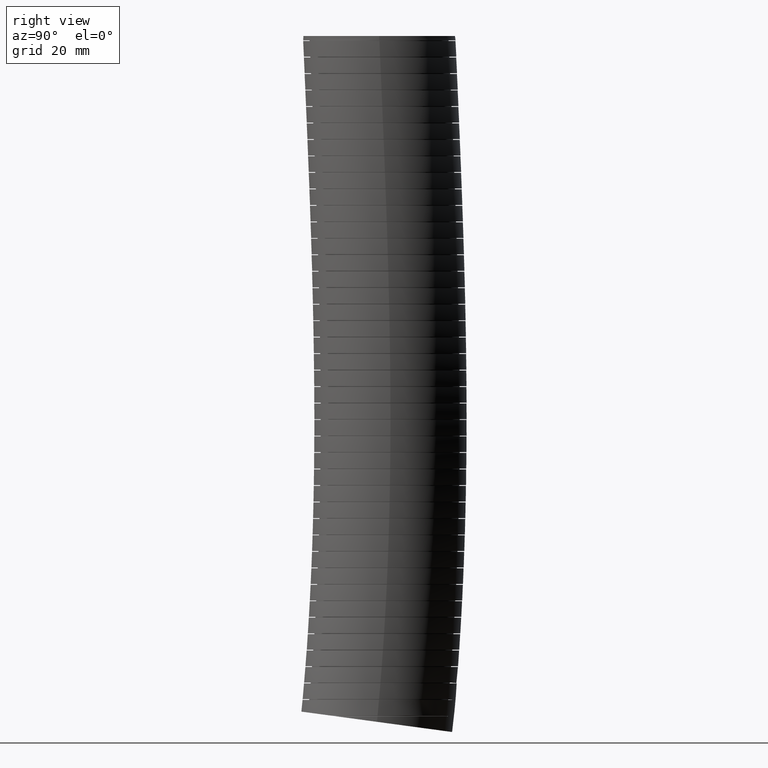
[diagram: clean part render]
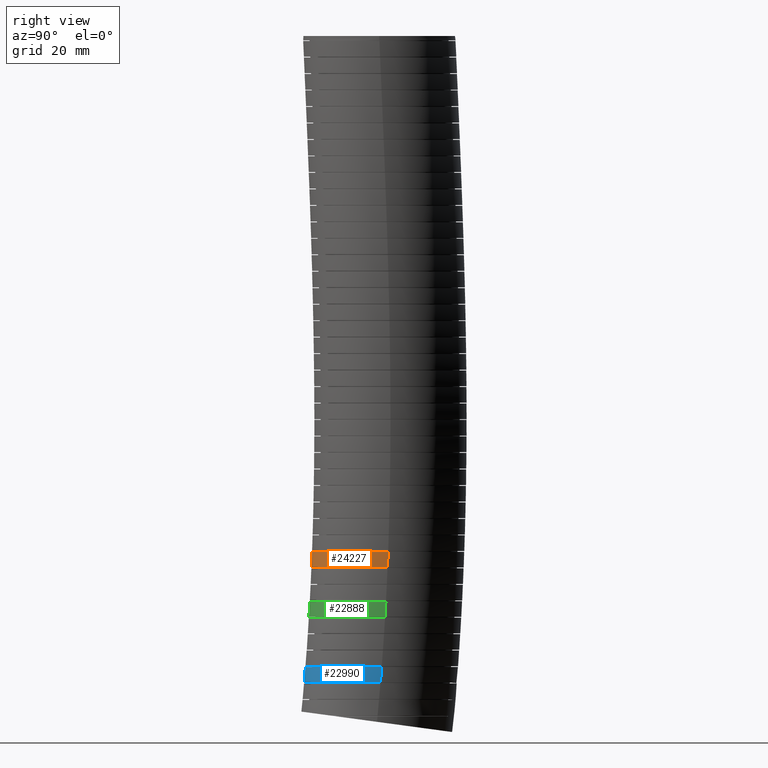
[diagram: same view with three faces highlighted in distinct colors, each labeled with its STEP entity id]
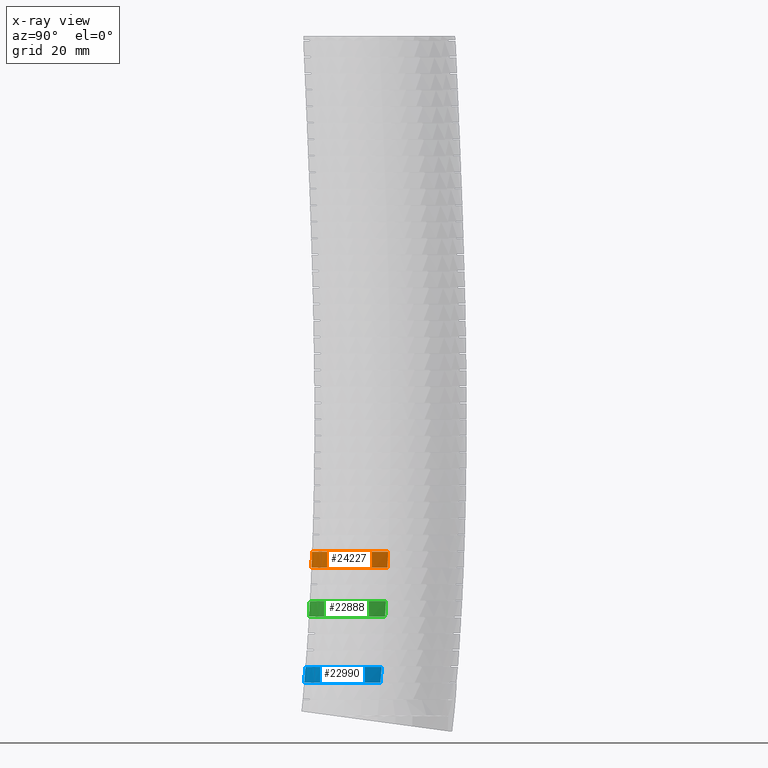
[diagram: x-ray of the same camera — body ghosted, the three highlighted faces saturated]
A machine part, right view with three faces highlighted in distinct colors.
The next image is the same camera in x-ray (body ghosted, the three faces saturated) — at least one of them is partly hidden behind the body in this view.
Their STEP definitions:

[orange] entity #24227 — the highlighted face is a freeform B-spline surface patch.
#18734 = CARTESIAN_POINT ( 'NONE',  ( -1.064999999999999500, 0.1169150529679793500, -7.416721031075635300 ) ) ;
#18735 = CARTESIAN_POINT ( 'NONE',  ( 1.064999999999999700, 0.1169150529678378700, -7.416721031077339700 ) ) ;
#18793 = CARTESIAN_POINT ( 'NONE',  ( 0.5321949249874771100, -0.7962491321097886500, -7.196895303458397600 ) ) ;
#18794 = CARTESIAN_POINT ( 'NONE',  ( 0.5622750634139295200, -0.7782511671094095600, -7.196895303458398500 ) ) ;
#18795 = CARTESIAN_POINT ( 'NONE',  ( 0.5771628461624078700, -0.7688354552259740700, -7.196895303458402000 ) ) ;
#18796 = CARTESIAN_POINT ( 'NONE',  ( 0.6499482838921772900, -0.7202476013751814000, -7.196895303458403800 ) ) ;
#18797 = CARTESIAN_POINT ( 'NONE',  ( 0.7035854257506749500, -0.6762224355758426100, -7.196895303458394900 ) ) ;
#18798 = CARTESIAN_POINT ( 'NONE',  ( 0.7773152398979890100, -0.6026330324511076600, -7.196895303458394000 ) ) ;
#18799 = CARTESIAN_POINT ( 'NONE',  ( 0.8007628438685930900, -0.5768356203541611400, -7.196895303458394000 ) ) ;
#18800 = CARTESIAN_POINT ( 'NONE',  ( 0.8341862016611305600, -0.5361768416997170200, -7.196895303458394000 ) ) ;
#18801 = CARTESIAN_POINT ( 'NONE',  ( 0.8450203485630154400, -0.5223099741413974600, -7.196895303458402900 ) ) ;
#18802 = CARTESIAN_POINT ( 'NONE',  ( 0.8658668766311874400, -0.4942279375832437900, -7.196895303458400200 ) ) ;
#18803 = CARTESIAN_POINT ( 'NONE',  ( 0.8759099632163047700, -0.4799762336519681800, -7.196895303458393100 ) ) ;
#18804 = CARTESIAN_POINT ( 'NONE',  ( 0.9242543987285675200, -0.4076808499960067900, -7.196895303458394000 ) ) ;
#18805 = CARTESIAN_POINT ( 'NONE',  ( 0.9569962275498356000, -0.3465562113070338500, -7.196895303458399300 ) ) ;
#18806 = CARTESIAN_POINT ( 'NONE',  ( 0.9971271631655452800, -0.2498917407970274700, -7.196895303458400200 ) ) ;
#18807 = CARTESIAN_POINT ( 'NONE',  ( 1.009039074788687700, -0.2166579865467011800, -7.196895303458398500 ) ) ;
#18808 = CARTESIAN_POINT ( 'NONE',  ( 1.029335178379691400, -0.1497828611629531100, -7.196895303458394900 ) ) ;
#18809 = CARTESIAN_POINT ( 'NONE',  ( 1.037775508083532200, -0.1160544129164570600, -7.196895303458397600 ) ) ;
#18810 = CARTESIAN_POINT ( 'NONE',  ( 1.058087659208686300, -0.01401588566982048800, -7.196895303458399300 ) ) ;
#18811 = CARTESIAN_POINT ( 'NONE',  ( 1.064999999999999500, 0.05513896853158904700, -7.196895303460285800 ) ) ;
#18812 = CARTESIAN_POINT ( 'NONE',  ( 1.064999999999999500, 0.1254712391842089400, -7.196895303460286700 ) ) ;
#18813 = B_SPLINE_CURVE_WITH_KNOTS ( 'NONE', 3,
 ( #18812, #18811, #18810, #18809, #18808, #18807, #18806, #18805, #18804, #18803, #18802, #18801, #18800, #18799, #18798, #18797, #18796, #18795, #18794, #18793, #18867, #18866, #18865, #18864, #18863, #18862, #18861, #18860, #18859, #18858, #18857, #18856, #18855, #18854, #18853, #18852, #18851, #18850, #18849, #18848, #18847, #18846, #18845, #18844, #18843, #18842, #18841, #18840, #18839, #18838, #18837, #18836, #18835, #18834, #18833, #18832, #18831, #18830, #18829, #18828, #18827 ),
 .UNSPECIFIED., .F., .F.,
 ( 4, 2, 2, 2, 2, 2, 2, 2, 2, 2, 2, 1, 2, 2, 2, 2, 2, 2, 2, 2, 2, 2, 2, 2, 2, 2, 2, 2, 2, 2, 4 ),
 ( 0.0000000000000000000, 0.005283222920612638800, 0.007924834380918960000, 0.01056644584122528300, 0.01584966876183793000, 0.01717047449199108800, 0.01849128022214424600, 0.02113289168245057300, 0.02641611460306320400, 0.02773692033321636600, 0.02905772606336952400, 0.03169933752367584700, 0.03434094898398216300, 0.03566175471413533100, 0.03698256044428849300, 0.04226578336490114500, 0.04490739482520746800, 0.04622820055536063000, 0.04754900628551379100, 0.05283222920612644400, 0.05415303493627961900, 0.05547384066643278700, 0.05811545212673911000, 0.06339867504735177700, 0.06604028650765811400, 0.06868189796796445000, 0.07132350942827077300, 0.07396512088857709600, 0.07924834380918975600, 0.08188995526949609200, 0.08453156672980241500 ),
 .UNSPECIFIED. ) ;
#18814 = CARTESIAN_POINT ( 'NONE',  ( -1.064999999999999100, 0.1254712391843466900, -7.196895303458395800 ) ) ;
#18815 = CARTESIAN_POINT ( 'NONE',  ( 1.064999999999999500, 0.1254712391842089400, -7.196895303460286700 ) ) ;
#18816 = CARTESIAN_POINT ( 'NONE',  ( -1.064999999999999500, 0.1169150529679793500, -7.416721031075635300 ) ) ;
#18817 = CARTESIAN_POINT ( 'NONE',  ( -1.064999999999999500, 0.1199522010486345500, -7.343453684752832400 ) ) ;
#18818 = CARTESIAN_POINT ( 'NONE',  ( -1.064999999999999500, 0.1228024119187635900, -7.270178363237003600 ) ) ;
#18819 = CARTESIAN_POINT ( 'NONE',  ( -1.064999999999999100, 0.1254712391843466900, -7.196895303458395800 ) ) ;
#18820 = B_SPLINE_CURVE_WITH_KNOTS ( 'NONE', 3,
 ( #18819, #18818, #18817, #18816 ),
 .UNSPECIFIED., .F., .F.,
 ( 4, 4 ),
 ( 0.7513668488522639000, 0.7743722105307409000 ),
 .UNSPECIFIED. ) ;
#18826 = FACE_OUTER_BOUND ( 'NONE', #24218, .T. ) ;
#18827 = CARTESIAN_POINT ( 'NONE',  ( -1.064999999999999100, 0.1254712391843466900, -7.196895303458395800 ) ) ;
#18828 = CARTESIAN_POINT ( 'NONE',  ( -1.064999999999999700, 0.09073443812956849500, -7.196895303458395800 ) ) ;
#18829 = CARTESIAN_POINT ( 'NONE',  ( -1.063301481944880900, 0.05588964039159871600, -7.196895303458397600 ) ) ;
#18830 = CARTESIAN_POINT ( 'NONE',  ( -1.056391755406061800, -0.01402330208628868400, -7.196895303458397600 ) ) ;
#18831 = CARTESIAN_POINT ( 'NONE',  ( -1.051216575504014200, -0.04865226334804156900, -7.196895303458398500 ) ) ;
#18832 = CARTESIAN_POINT ( 'NONE',  ( -1.030783240590632300, -0.1509377918546262700, -7.196895303458397600 ) ) ;
#18833 = CARTESIAN_POINT ( 'NONE',  ( -1.010635730616003900, -0.2172937241036851900, -7.196895303458395800 ) ) ;
#18834 = CARTESIAN_POINT ( 'NONE',  ( -0.9705068591673656800, -0.3140423483264181400, -7.196895303458397600 ) ) ;
#18835 = CARTESIAN_POINT ( 'NONE',  ( -0.9553834692832378100, -0.3459512150346554200, -7.196895303458399300 ) ) ;
#18836 = CARTESIAN_POINT ( 'NONE',  ( -0.9223953958803352600, -0.4074994585894301000, -7.196895303458398500 ) ) ;
#18837 = CARTESIAN_POINT ( 'NONE',  ( -0.9044871107585599200, -0.4372814663142466900, -7.196895303458400200 ) ) ;
#18838 = CARTESIAN_POINT ( 'NONE',  ( -0.8659011312754098000, -0.4949027043957548400, -7.196895303458394000 ) ) ;
#18839 = CARTESIAN_POINT ( 'NONE',  ( -0.8452233474366464000, -0.5227418719828664800, -7.196895303458391300 ) ) ;
#18840 = CARTESIAN_POINT ( 'NONE',  ( -0.8010767407568263300, -0.5764622562231199700, -7.196895303458393100 ) ) ;
#18841 = CARTESIAN_POINT ( 'NONE',  ( -0.7775629276370847900, -0.6023886043044829300, -7.196895303458400200 ) ) ;
#18842 = CARTESIAN_POINT ( 'NONE',  ( -0.7029629917733148900, -0.6768381012693349700, -7.196895303458400200 ) ) ;
#18843 = CARTESIAN_POINT ( 'NONE',  ( -0.6491654883797357600, -0.7207946442504277200, -7.196895303458400200 ) ) ;
#18844 = CARTESIAN_POINT ( 'NONE',  ( -0.5626061026516858700, -0.7785404689496434600, -7.196895303458399300 ) ) ;
#18845 = CARTESIAN_POINT ( 'NONE',  ( -0.5327685680964795400, -0.7964141648715880000, -7.196895303458393100 ) ) ;
#18846 = CARTESIAN_POINT ( 'NONE',  ( -0.4864999022330037100, -0.8211124014660194900, -7.196895303458394000 ) ) ;
#18847 = CARTESIAN_POINT ( 'NONE',  ( -0.4707834755748994100, -0.8290113727560379800, -7.196895303458400200 ) ) ;
#18848 = CARTESIAN_POINT ( 'NONE',  ( -0.4390424045031295900, -0.8439907604674120600, -7.196895303458402900 ) ) ;
#18849 = CARTESIAN_POINT ( 'NONE',  ( -0.4230490249420298900, -0.8510593310051782800, -7.196895303458398500 ) ) ;
#18850 = CARTESIAN_POINT ( 'NONE',  ( -0.3424799516567722000, -0.8843378575245969300, -7.196895303458397600 ) ) ;
#18851 = CARTESIAN_POINT ( 'NONE',  ( -0.2761148587472826400, -0.9044135491763853900, -7.196895303458399300 ) ) ;
#18852 = CARTESIAN_POINT ( 'NONE',  ( -0.1907862004699535900, -0.9213756759337181600, -7.196895303458397600 ) ) ;
#18853 = CARTESIAN_POINT ( 'NONE',  ( -0.1736007881034331300, -0.9243578221686998800, -7.196895303458398500 ) ) ;
#18854 = CARTESIAN_POINT ( 'NONE',  ( -0.1389866105709555700, -0.9294878735093553600, -7.196895303458397600 ) ) ;
#18855 = CARTESIAN_POINT ( 'NONE',  ( -0.1215087285427577900, -0.9316397073727577000, -7.196895303458397600 ) ) ;
#18856 = CARTESIAN_POINT ( 'NONE',  ( -0.06915970167012155900, -0.9367738728258707700, -7.196895303458397600 ) ) ;
#18857 = CARTESIAN_POINT ( 'NONE',  ( -0.03435367243896934900, -0.9384534084412248200, -7.196895303458400200 ) ) ;
#18858 = CARTESIAN_POINT ( 'NONE',  ( 0.06979278824971672800, -0.9384180633812117000, -7.196895303458399300 ) ) ;
#18859 = CARTESIAN_POINT ( 'NONE',  ( 0.1388641762547233900, -0.9316774911700872500, -7.196895303458397600 ) ) ;
#18860 = CARTESIAN_POINT ( 'NONE',  ( 0.2247418886702254900, -0.9146306027977244600, -7.196895303458394900 ) ) ;
#18861 = CARTESIAN_POINT ( 'NONE',  ( 0.2419335750877600900, -0.9107747222755571100, -7.196895303458398500 ) ) ;
#18862 = CARTESIAN_POINT ( 'NONE',  ( 0.2759204857954800100, -0.9022649439963946700, -7.196895303458400200 ) ) ;
#18863 = CARTESIAN_POINT ( 'NONE',  ( 0.2927478733779755900, -0.8976067341844952100, -7.196895303458399300 ) ) ;
#18864 = CARTESIAN_POINT ( 'NONE',  ( 0.3427406248396456200, -0.8824434955008038100, -7.196895303458395800 ) ) ;
#18865 = CARTESIAN_POINT ( 'NONE',  ( 0.4080948329426361500, -0.8590618122413443700, -7.196895303458402900 ) ) ;
#18866 = CARTESIAN_POINT ( 'NONE',  ( 0.4708788668902750800, -0.8294380727430421500, -7.196895303458403800 ) ) ;
#18867 = CARTESIAN_POINT ( 'NONE',  ( 0.5169884345679980300, -0.8048439355676330100, -7.196895303458402900 ) ) ;
#18868 = CARTESIAN_POINT ( 'NONE',  ( 0.6495398669898668800, -0.7292330745264171700, -7.416721031075633500 ) ) ;
#18869 = CARTESIAN_POINT ( 'NONE',  ( 0.5771442189153074300, -0.7775582835626646500, -7.416721031075637100 ) ) ;
#18870 = CARTESIAN_POINT ( 'NONE',  ( 0.5623948583557016900, -0.7868908698297094600, -7.416721031075635300 ) ) ;
#18871 = CARTESIAN_POINT ( 'NONE',  ( 0.5323461600143164500, -0.8048794249071791200, -7.416721031075637100 ) ) ;
#18872 = CARTESIAN_POINT ( 'NONE',  ( 0.5170107956864399300, -0.8135527148395237400, -7.416721031075638000 ) ) ;
#18873 = CARTESIAN_POINT ( 'NONE',  ( 0.4706466605345964700, -0.8382832990820947600, -7.416721031075636200 ) ) ;
#18874 = CARTESIAN_POINT ( 'NONE',  ( 0.4391481558867735800, -0.8531310673738679000, -7.416721031075635300 ) ) ;
#18875 = CARTESIAN_POINT ( 'NONE',  ( 0.3429351417458598200, -0.8928949340717082800, -7.416721031075635300 ) ) ;
#18876 = CARTESIAN_POINT ( 'NONE',  ( 0.2765195772396678600, -0.9130773577546536000, -7.416721031075633500 ) ) ;
#18877 = CARTESIAN_POINT ( 'NONE',  ( 0.1905723376311421700, -0.9301579865428362100, -7.416721031075635300 ) ) ;
#18878 = CARTESIAN_POINT ( 'NONE',  ( 0.1732163508526136700, -0.9331631890471954200, -7.416721031075639700 ) ) ;
#18879 = CARTESIAN_POINT ( 'NONE',  ( 0.1385900252449717700, -0.9382829096880114200, -7.416721031075637100 ) ) ;
#18880 = CARTESIAN_POINT ( 'NONE',  ( 0.1212735459744827700, -0.9404077913898015700, -7.416721031075627300 ) ) ;
#18881 = CARTESIAN_POINT ( 'NONE',  ( 0.06931432642252416400, -0.9454994903995350700, -7.416721031075629100 ) ) ;
#18882 = CARTESIAN_POINT ( 'NONE',  ( 0.03466182742139191400, -0.9471863809596250400, -7.416721031075632600 ) ) ;
#18883 = CARTESIAN_POINT ( 'NONE',  ( -0.03466889551195098000, -0.9471861510915152700, -7.416721031075633500 ) ) ;
#18884 = CARTESIAN_POINT ( 'NONE',  ( -0.06934711916521531200, -0.9454990672491251400, -7.416721031075633500 ) ) ;
#18885 = CARTESIAN_POINT ( 'NONE',  ( -0.1213840714135267400, -0.9403955602608111700, -7.416721031075632600 ) ) ;
#18886 = CARTESIAN_POINT ( 'NONE',  ( -0.1387329974294140000, -0.9382648163532644200, -7.416721031075641500 ) ) ;
#18887 = CARTESIAN_POINT ( 'NONE',  ( -0.1734375278575355200, -0.9331274084980851800, -7.416721031075641500 ) ) ;
#18888 = CARTESIAN_POINT ( 'NONE',  ( -0.1907772653333760500, -0.9301200933468000100, -7.416721031075633500 ) ) ;
#18889 = CARTESIAN_POINT ( 'NONE',  ( -0.2765343905006316700, -0.9130630130741077500, -7.416721031075635300 ) ) ;
#18890 = CARTESIAN_POINT ( 'NONE',  ( -0.3429131773602775400, -0.8929065505994745500, -7.416721031075635300 ) ) ;
#18891 = CARTESIAN_POINT ( 'NONE',  ( -0.4392090433329086700, -0.8531046327859003200, -7.416721031075635300 ) ) ;
#18892 = CARTESIAN_POINT ( 'NONE',  ( -0.4707584037887242400, -0.8382314578246050600, -7.416721031075633500 ) ) ;
#18893 = CARTESIAN_POINT ( 'NONE',  ( -0.5327214813676809400, -0.8051648418116699200, -7.416721031075635300 ) ) ;
#18894 = CARTESIAN_POINT ( 'NONE',  ( -0.5627672259067525400, -0.7871580872553274300, -7.416721031075635300 ) ) ;
#18895 = CARTESIAN_POINT ( 'NONE',  ( -0.6495226586174517300, -0.7292386725784745200, -7.416721031075633500 ) ) ;
#18896 = CARTESIAN_POINT ( 'NONE',  ( -0.7031755539821310500, -0.6853080707049349400, -7.416721031075632600 ) ) ;
#18897 = CARTESIAN_POINT ( 'NONE',  ( -0.7773019187493274100, -0.6113379594978971500, -7.416721031075635300 ) ) ;
#18898 = CARTESIAN_POINT ( 'NONE',  ( -0.8010344244813528700, -0.5851952408620045800, -7.416721031075636200 ) ) ;
#18899 = CARTESIAN_POINT ( 'NONE',  ( -0.8453664495070420900, -0.5312312917108567000, -7.416721031075636200 ) ) ;
#18900 = CARTESIAN_POINT ( 'NONE',  ( -0.8660758023732565400, -0.5033217664203993900, -7.416721031075638000 ) ) ;
#18901 = CARTESIAN_POINT ( 'NONE',  ( -0.9046414439532051200, -0.4456859828089799200, -7.416721031075640600 ) ) ;
#18902 = CARTESIAN_POINT ( 'NONE',  ( -0.9224976433470513100, -0.4159596676121868900, -7.416721031075636200 ) ) ;
#18903 = CARTESIAN_POINT ( 'NONE',  ( -0.9553341116184095300, -0.3546757436748080900, -7.416721031075635300 ) ) ;
#18904 = CARTESIAN_POINT ( 'NONE',  ( -0.9703361361108602300, -0.3230662686447894300, -7.416721031075630900 ) ) ;
#18905 = CARTESIAN_POINT ( 'NONE',  ( -1.010731747191008200, -0.2257128459308555000, -7.416721031075632600 ) ) ;
#18906 = CARTESIAN_POINT ( 'NONE',  ( -1.030857211456512400, -0.1592190284411905400, -7.416721031075638000 ) ) ;
#18907 = CARTESIAN_POINT ( 'NONE',  ( -1.051222924623006500, -0.05718102620384319500, -7.416721031075641500 ) ) ;
#18908 = CARTESIAN_POINT ( 'NONE',  ( -1.056362329500365000, -0.02278265287606232000, -7.416721031075631700 ) ) ;
#18909 = CARTESIAN_POINT ( 'NONE',  ( -1.061536981046287100, 0.02940766398610869900, -7.416721031075635300 ) ) ;
#18910 = CARTESIAN_POINT ( 'NONE',  ( -1.062840519574505000, 0.04694874282523719300, -7.416721031075638000 ) ) ;
#18911 = CARTESIAN_POINT ( 'NONE',  ( -1.064571515687644700, 0.08200230995875544500, -7.416721031075638000 ) ) ;
#18912 = CARTESIAN_POINT ( 'NONE',  ( -1.064999999999999300, 0.09948184475756093000, -7.416721031075626400 ) ) ;
#18913 = CARTESIAN_POINT ( 'NONE',  ( -1.064999999999999500, 0.1169150529679793500, -7.416721031075635300 ) ) ;
#18914 = B_SPLINE_CURVE_WITH_KNOTS ( 'NONE', 3,
 ( #18913, #18912, #18911, #18910, #18909, #18908, #18907, #18906, #18905, #18904, #18903, #18902, #18901, #18900, #18899, #18898, #18897, #18896, #18895, #18894, #18893, #18892, #18891, #18890, #18889, #18888, #18887, #18886, #18885, #18884, #18883, #18882, #18881, #18880, #18879, #18878, #18877, #18876, #18875, #18874, #18873, #18872, #18871, #18870, #18869, #18868, #18951, #18950, #18949, #18948, #18947, #18946, #18945, #18944, #18943, #18942, #18941, #18940, #18939, #18938, #18937, #18936, #18935, #18934, #18933, #18932 ),
 .UNSPECIFIED., .F., .F.,
 ( 4, 2, 2, 2, 2, 2, 2, 2, 2, 2, 2, 2, 2, 2, 2, 2, 2, 2, 2, 2, 2, 2, 2, 2, 2, 2, 2, 2, 2, 2, 2, 2, 4 ),
 ( 0.08544344421675022200, 0.08677856279857257300, 0.08811368138039493700, 0.09078391854403963800, 0.09612439287132906700, 0.09879463003497376800, 0.1014648671986184800, 0.1041351043622632000, 0.1068053415259079100, 0.1121458158531973300, 0.1148160530168420600, 0.1174862901804867600, 0.1228267645077762100, 0.1241618830895985700, 0.1254970016714209200, 0.1281672388350656400, 0.1308374759987103700, 0.1321725945805327100, 0.1335077131623551000, 0.1388481874896445300, 0.1415184246532892600, 0.1428535432351116200, 0.1441886618169339600, 0.1495291361442234200, 0.1508642547260457800, 0.1521993733078681500, 0.1548696104715128800, 0.1602100847988022800, 0.1615452033806246100, 0.1628803219624469800, 0.1655505591260916800, 0.1682207962897364100, 0.1708910334533811100 ),
 .UNSPECIFIED. ) ;
#18932 = CARTESIAN_POINT ( 'NONE',  ( 1.064999999999999700, 0.1169150529678378700, -7.416721031077339700 ) ) ;
#18933 = CARTESIAN_POINT ( 'NONE',  ( 1.064999999999999900, 0.08175107642261117400, -7.416721031077340600 ) ) ;
#18934 = CARTESIAN_POINT ( 'NONE',  ( 1.063243616240595600, 0.04656506492679927300, -7.416721031075639700 ) ) ;
#18935 = CARTESIAN_POINT ( 'NONE',  ( 1.056347651635299200, -0.02287510567009220700, -7.416721031075639700 ) ) ;
#18936 = CARTESIAN_POINT ( 'NONE',  ( 1.051214205172000600, -0.05723062775852844800, -7.416721031075636200 ) ) ;
#18937 = CARTESIAN_POINT ( 'NONE',  ( 1.037640594420800500, -0.1252264341434122800, -7.416721031075636200 ) ) ;
#18938 = CARTESIAN_POINT ( 'NONE',  ( 1.029200353164379400, -0.1588667017916925200, -7.416721031075636200 ) ) ;
#18939 = CARTESIAN_POINT ( 'NONE',  ( 1.014035966668704700, -0.2087854867341037100, -7.416721031075636200 ) ) ;
#18940 = CARTESIAN_POINT ( 'NONE',  ( 1.008563095500944400, -0.2253346526143962200, -7.416721031075631700 ) ) ;
#18941 = CARTESIAN_POINT ( 'NONE',  ( 0.9967679689884284500, -0.2582492639320748700, -7.416721031075635300 ) ) ;
#18942 = CARTESIAN_POINT ( 'NONE',  ( 0.9904279103243175400, -0.2746565519364981300, -7.416721031075637100 ) ) ;
#18943 = CARTESIAN_POINT ( 'NONE',  ( 0.9567808822486452100, -0.3556881525633313600, -7.416721031075639700 ) ) ;
#18944 = CARTESIAN_POINT ( 'NONE',  ( 0.9239265318508355100, -0.4168683688403738700, -7.416721031075631700 ) ) ;
#18945 = CARTESIAN_POINT ( 'NONE',  ( 0.8660485811850247000, -0.5033606138478226000, -7.416721031075630900 ) ) ;
#18946 = CARTESIAN_POINT ( 'NONE',  ( 0.8453126965426091000, -0.5313052373335307400, -7.416721031075635300 ) ) ;
#18947 = CARTESIAN_POINT ( 'NONE',  ( 0.8119874142246258400, -0.5718582314275348900, -7.416721031075636200 ) ) ;
#18948 = CARTESIAN_POINT ( 'NONE',  ( 0.8004742921384969700, -0.5851839278729195100, -7.416721031075631700 ) ) ;
#18949 = CARTESIAN_POINT ( 'NONE',  ( 0.7769014600849425400, -0.6111395114025067700, -7.416721031075629100 ) ) ;
#18950 = CARTESIAN_POINT ( 'NONE',  ( 0.7648388958536666000, -0.6237775678323759200, -7.416721031075635300 ) ) ;
#18951 = CARTESIAN_POINT ( 'NONE',  ( 0.7031711739886514800, -0.6853009637280826900, -7.416721031075632600 ) ) ;
#18952 = CARTESIAN_POINT ( 'NONE',  ( 1.064999999999999700, -2.124537751342253000, -9.104349485882636400 ) ) ;
#18953 = CARTESIAN_POINT ( 'NONE',  ( 1.064999999999999700, -2.004921696294905200, -7.777820822391721100 ) ) ;
#18954 = CARTESIAN_POINT ( 'NONE',  ( 1.064999999999999900, -1.920720332394860500, -4.747094541069063900 ) ) ;
#18955 = CARTESIAN_POINT ( 'NONE',  ( 1.065000000000000200, -2.051880588320306000, -1.771984048808268300 ) ) ;
#18956 = CARTESIAN_POINT ( 'NONE',  ( 1.064999999999999900, -2.129999999999999900, 0.0000000000000000000 ) ) ;
#18957 = CARTESIAN_POINT ( 'NONE',  ( 1.064999999999999700, -0.02999999999999993000, -9.569999999999996700 ) ) ;
#18958 = CARTESIAN_POINT ( 'NONE',  ( 1.064999999999999700, -0.01282253193203170200, -9.380021792021830500 ) ) ;
#18959 = CARTESIAN_POINT ( 'NONE',  ( 1.064999999999999700, 0.1136175452062334300, -7.981628316551387500 ) ) ;
#18960 = CARTESIAN_POINT ( 'NONE',  ( 1.064999999999999500, 0.2122813731536103700, -4.795410929656176400 ) ) ;
#18961 = CARTESIAN_POINT ( 'NONE',  ( 1.064999999999999900, 0.07923988111738790300, -1.790019474294677300 ) ) ;
#18962 = CARTESIAN_POINT ( 'NONE',  ( 1.064999999999999900, 0.0000000000000000000, 0.0000000000000000000 ) ) ;
#18965 =( BOUNDED_SURFACE ( )  B_SPLINE_SURFACE ( 3, 3, ( 
 ( #18962, #18961, #18960, #18959, #18958, #18957 ),
 ( #18956, #18955, #18954, #18953, #18952, #18997 ),
 ( #18996, #18995, #18994, #18993, #18992, #18991 ),
 ( #18990, #18989, #18988, #18987, #18986, #18985 ),
 ( #18984, #18983, #18982, #18981, #18980, #18979 ),
 ( #18978, #18977, #18976, #18975, #18974, #18973 ),
 ( #18972, #18971, #18970, #18969, #18968, #18967 ) ),
 .UNSPECIFIED., .F., .F., .F. ) 
 B_SPLINE_SURFACE_WITH_KNOTS ( ( 4, 3, 4 ),
 ( 4, 1, 1, 4 ),
 ( 0.0000000000000000000, 0.5000000000000000000, 1.000000000000000000 ),
 ( 0.0000000000000000000, 0.5600000000000001600, 0.9402239691641354200, 1.000000000000000000 ),
 .UNSPECIFIED. ) 
 GEOMETRIC_REPRESENTATION_ITEM ( )  RATIONAL_B_SPLINE_SURFACE ( (
 ( 1.000000000000000000, 1.000000000000000000, 1.000000000000000200, 1.000000000000000200, 1.000000000000000200, 1.000000000000000200),
 ( 0.3333333333333333100, 0.3333333333333333100, 0.3333333333333332600, 0.3333333333333334300, 0.3333333333333333700, 0.3333333333333333700),
 ( 0.3333333333333333100, 0.3333333333333333100, 0.3333333333333332600, 0.3333333333333334300, 0.3333333333333333700, 0.3333333333333333700),
 ( 1.000000000000000000, 1.000000000000000000, 1.000000000000000200, 1.000000000000000200, 1.000000000000000200, 1.000000000000000200),
 ( 0.3333333333333333100, 0.3333333333333333100, 0.3333333333333332600, 0.3333333333333334300, 0.3333333333333333700, 0.3333333333333333700),
 ( 0.3333333333333333100, 0.3333333333333333100, 0.3333333333333332600, 0.3333333333333334300, 0.3333333333333333700, 0.3333333333333333700),
 ( 1.000000000000000000, 1.000000000000000000, 1.000000000000000200, 1.000000000000000200, 1.000000000000000200, 1.000000000000000200) ) ) 
 REPRESENTATION_ITEM ( '' )  SURFACE ( )  );
#18967 = CARTESIAN_POINT ( 'NONE',  ( 1.064999999999999700, -0.02999999999999993000, -9.569999999999996700 ) ) ;
#18968 = CARTESIAN_POINT ( 'NONE',  ( 1.064999999999999700, -0.01282253193203170200, -9.380021792021830500 ) ) ;
#18969 = CARTESIAN_POINT ( 'NONE',  ( 1.064999999999999700, 0.1136175452062334300, -7.981628316551387500 ) ) ;
#18970 = CARTESIAN_POINT ( 'NONE',  ( 1.064999999999999500, 0.2122813731536103700, -4.795410929656176400 ) ) ;
#18971 = CARTESIAN_POINT ( 'NONE',  ( 1.064999999999999900, 0.07923988111738790300, -1.790019474294677300 ) ) ;
#18972 = CARTESIAN_POINT ( 'NONE',  ( 1.064999999999999900, 0.0000000000000000000, 0.0000000000000000000 ) ) ;
#18973 = CARTESIAN_POINT ( 'NONE',  ( 1.064999999999999700, 2.080788144512650400, -9.855435472541238100 ) ) ;
#18974 = CARTESIAN_POINT ( 'NONE',  ( 1.064999999999999700, 2.098892687478189700, -9.655694098161024600 ) ) ;
#18975 = CARTESIAN_POINT ( 'NONE',  ( 1.064999999999999700, 2.232156786707371500, -8.185435810711052100 ) ) ;
#18976 = CARTESIAN_POINT ( 'NONE',  ( 1.064999999999999900, 2.345283078702082900, -4.843727318243294300 ) ) ;
#18977 = CARTESIAN_POINT ( 'NONE',  ( 1.065000000000000200, 2.210360350555081500, -1.808054899781085700 ) ) ;
#18978 = CARTESIAN_POINT ( 'NONE',  ( 1.064999999999999900, 2.129999999999999900, 0.0000000000000000000 ) ) ;
#18979 = CARTESIAN_POINT ( 'NONE',  ( -1.064999999999999700, 2.080788144512650400, -9.855435472541238100 ) ) ;
#18980 = CARTESIAN_POINT ( 'NONE',  ( -1.064999999999999700, 2.098892687478189700, -9.655694098161024600 ) ) ;
#18981 = CARTESIAN_POINT ( 'NONE',  ( -1.064999999999999500, 2.232156786707371500, -8.185435810711052100 ) ) ;
#18982 = CARTESIAN_POINT ( 'NONE',  ( -1.064999999999999500, 2.345283078702082900, -4.843727318243294300 ) ) ;
#18983 = CARTESIAN_POINT ( 'NONE',  ( -1.064999999999999900, 2.210360350555081500, -1.808054899781085700 ) ) ;
#18984 = CARTESIAN_POINT ( 'NONE',  ( -1.064999999999999900, 2.129999999999999900, 0.0000000000000000000 ) ) ;
#18985 = CARTESIAN_POINT ( 'NONE',  ( -1.064999999999999700, -0.02999999999999980100, -9.569999999999996700 ) ) ;
#18986 = CARTESIAN_POINT ( 'NONE',  ( -1.064999999999999700, -0.01282253193203157000, -9.380021792021830500 ) ) ;
#18987 = CARTESIAN_POINT ( 'NONE',  ( -1.064999999999999700, 0.1136175452062335600, -7.981628316551387500 ) ) ;
#18988 = CARTESIAN_POINT ( 'NONE',  ( -1.064999999999999500, 0.2122813731536105100, -4.795410929656176400 ) ) ;
#18989 = CARTESIAN_POINT ( 'NONE',  ( -1.064999999999999900, 0.07923988111738802800, -1.790019474294677300 ) ) ;
#18990 = CARTESIAN_POINT ( 'NONE',  ( -1.064999999999999900, 1.304248841091931100E-016, 0.0000000000000000000 ) ) ;
#18991 = CARTESIAN_POINT ( 'NONE',  ( -1.064999999999999900, -2.140788144512650400, -9.284564527458751800 ) ) ;
#18992 = CARTESIAN_POINT ( 'NONE',  ( -1.064999999999999900, -2.124537751342253000, -9.104349485882636400 ) ) ;
#18993 = CARTESIAN_POINT ( 'NONE',  ( -1.064999999999999700, -2.004921696294905200, -7.777820822391721100 ) ) ;
#18994 = CARTESIAN_POINT ( 'NONE',  ( -1.065000000000000400, -1.920720332394860500, -4.747094541069063900 ) ) ;
#18995 = CARTESIAN_POINT ( 'NONE',  ( -1.065000000000000200, -2.051880588320306000, -1.771984048808268300 ) ) ;
#18996 = CARTESIAN_POINT ( 'NONE',  ( -1.065000000000000200, -2.129999999999999900, 0.0000000000000000000 ) ) ;
#18997 = CARTESIAN_POINT ( 'NONE',  ( 1.064999999999999700, -2.140788144512650400, -9.284564527458751800 ) ) ;
#19254 = B_SPLINE_CURVE_WITH_KNOTS ( 'NONE', 3,
 ( #19271, #19270, #19269, #19268 ),
 .UNSPECIFIED., .F., .F.,
 ( 4, 4 ),
 ( 0.7513668488524619700, 0.7743722105309194200 ),
 .UNSPECIFIED. ) ;
#19268 = CARTESIAN_POINT ( 'NONE',  ( 1.064999999999999700, 0.1169150529678378700, -7.416721031077339700 ) ) ;
#19269 = CARTESIAN_POINT ( 'NONE',  ( 1.064999999999999500, 0.1199522010485640100, -7.343453684754599900 ) ) ;
#19270 = CARTESIAN_POINT ( 'NONE',  ( 1.064999999999999500, 0.1228024119186936500, -7.270178363238834200 ) ) ;
#19271 = CARTESIAN_POINT ( 'NONE',  ( 1.064999999999999500, 0.1254712391842089400, -7.196895303460286700 ) ) ;
#24198 = VERTEX_POINT ( 'NONE', #18735 ) ;
#24208 = VERTEX_POINT ( 'NONE', #18734 ) ;
#24210 = EDGE_CURVE ( 'NONE', #24217, #24208, #18820, .T. ) ;
#24211 = EDGE_CURVE ( 'NONE', #24213, #24217, #18813, .T. ) ;
#24212 = ORIENTED_EDGE ( 'NONE', *, *, #24224, .T. ) ;
#24213 = VERTEX_POINT ( 'NONE', #18815 ) ;
#24216 = ORIENTED_EDGE ( 'NONE', *, *, #24211, .T. ) ;
#24217 = VERTEX_POINT ( 'NONE', #18814 ) ;
#24218 = EDGE_LOOP ( 'NONE', ( #24216, #24219, #24212, #24253 ) ) ;
#24219 = ORIENTED_EDGE ( 'NONE', *, *, #24210, .T. ) ;
#24224 = EDGE_CURVE ( 'NONE', #24208, #24198, #18914, .T. ) ;
#24227 = ADVANCED_FACE ( 'NONE', ( #18826 ), #18965, .T. ) ;
#24253 = ORIENTED_EDGE ( 'NONE', *, *, #24254, .F. ) ;
#24254 = EDGE_CURVE ( 'NONE', #24213, #24198, #19254, .T. ) ;

[blue] entity #22990 — the highlighted face is a freeform B-spline surface patch.
#9127 = CARTESIAN_POINT ( 'NONE',  ( 0.8762972953604336600, -0.5709529093051644000, -8.804286011987954900 ) ) ;
#9128 = CARTESIAN_POINT ( 'NONE',  ( 0.9245589117464573200, -0.4984806992116370100, -8.804286011987958500 ) ) ;
#9129 = CARTESIAN_POINT ( 'NONE',  ( 0.9572403692617003100, -0.4372176647189883200, -8.804286011987954900 ) ) ;
#9130 = CARTESIAN_POINT ( 'NONE',  ( 0.9972919462395142300, -0.3403515106136433800, -8.804286011987954900 ) ) ;
#9334 = CARTESIAN_POINT ( 'NONE',  ( 0.8454592224865761200, -0.6133937090368580800, -8.804286011987954900 ) ) ;
#9335 = CARTESIAN_POINT ( 'NONE',  ( 0.8662711474299310500, -0.5852401739215540300, -8.804286011987956700 ) ) ;
#9618 = CARTESIAN_POINT ( 'NONE',  ( 1.009177221311341000, -0.3070557697091194100, -8.804286011987949600 ) ) ;
#9619 = CARTESIAN_POINT ( 'NONE',  ( 1.029423298621253300, -0.2400764138004109500, -8.804286011987949600 ) ) ;
#9620 = CARTESIAN_POINT ( 'NONE',  ( 1.037842875361837800, -0.2062966968151087300, -8.804286011987958500 ) ) ;
#9621 = CARTESIAN_POINT ( 'NONE',  ( 1.058104980376954000, -0.1041067981432023400, -8.804286011987956700 ) ) ;
#9622 = CARTESIAN_POINT ( 'NONE',  ( 1.064999999999999500, -0.03485423154456832700, -8.804286011795982200 ) ) ;
#9623 = CARTESIAN_POINT ( 'NONE',  ( 1.064999999999999700, 0.03557231187912043800, -8.804286011795985800 ) ) ;
#9624 = B_SPLINE_CURVE_WITH_KNOTS ( 'NONE', 3,
 ( #9623, #9622, #9621, #9620, #9619, #9618, #9130, #9129, #9128, #9127, #9335, #9334, #22302, #22308, #22306, #22305, #22307, #22304, #22310, #22309, #22315, #22316, #22319, #22318, #22321, #22320, #22317, #22334, #22340, #22341, #22342, #22344, #22337, #22348, #22360, #22357, #22359, #22349, #22371, #22380, #22368, #22376, #22377, #22383, #22391, #22393, #22382, #23851, #23855, #23858, #23863, #23870, #23869, #23876, #23881, #23879, #23898, #23914, #23918, #22166, #22165 ),
 .UNSPECIFIED., .F., .F.,
 ( 4, 2, 2, 2, 2, 2, 2, 2, 2, 2, 2, 1, 2, 2, 2, 2, 2, 2, 2, 2, 2, 2, 2, 2, 2, 2, 2, 2, 2, 2, 4 ),
 ( 0.0000000000000000000, 0.005290366629595415200, 0.007935549944393124500, 0.01058073325919083400, 0.01587109988878624600, 0.01719369154618509800, 0.01851628320358395000, 0.02116146651838166800, 0.02645183314797711100, 0.02777442480537597700, 0.02909701646277483900, 0.03174219977757256800, 0.03438738309237029300, 0.03570997474976915500, 0.03703256640716801700, 0.04232293303676348100, 0.04496811635156122000, 0.04629070800896008300, 0.04761329966635894500, 0.05290366629595442300, 0.05422625795335328500, 0.05554884961075214800, 0.05819403292554987300, 0.06348439955514534300, 0.06612958286994308200, 0.06877476618474082100, 0.07141994949953856000, 0.07406513281433629900, 0.07935549944393177600, 0.08200068275872951500, 0.08464586607352726800 ),
 .UNSPECIFIED. ) ;
#9793 = FACE_OUTER_BOUND ( 'NONE', #22950, .T. ) ;
#9816 =( BOUNDED_SURFACE ( )  B_SPLINE_SURFACE ( 3, 3, ( 
 ( #9865, #9864, #9863, #9862, #9861, #9860 ),
 ( #9859, #9858, #9857, #9856, #9854, #9853 ),
 ( #9852, #9851, #9850, #9849, #9848, #9847 ),
 ( #9846, #9845, #9843, #9842, #9841, #9840 ),
 ( #9839, #9838, #9836, #9835, #9834, #9833 ),
 ( #9832, #9831, #9830, #9829, #9828, #9827 ),
 ( #9826, #9825, #9824, #9823, #9822, #9890 ) ),
 .UNSPECIFIED., .F., .F., .F. ) 
 B_SPLINE_SURFACE_WITH_KNOTS ( ( 4, 3, 4 ),
 ( 4, 1, 1, 4 ),
 ( 0.0000000000000000000, 0.5000000000000000000, 1.000000000000000000 ),
 ( 0.0000000000000000000, 0.5600000000000001600, 0.9402239691641354200, 1.000000000000000000 ),
 .UNSPECIFIED. ) 
 GEOMETRIC_REPRESENTATION_ITEM ( )  RATIONAL_B_SPLINE_SURFACE ( (
 ( 1.000000000000000000, 1.000000000000000000, 1.000000000000000200, 1.000000000000000200, 1.000000000000000200, 1.000000000000000200),
 ( 0.3333333333333333100, 0.3333333333333333100, 0.3333333333333332600, 0.3333333333333334300, 0.3333333333333333700, 0.3333333333333333700),
 ( 0.3333333333333333100, 0.3333333333333333100, 0.3333333333333332600, 0.3333333333333334300, 0.3333333333333333700, 0.3333333333333333700),
 ( 1.000000000000000000, 1.000000000000000000, 1.000000000000000200, 1.000000000000000200, 1.000000000000000200, 1.000000000000000200),
 ( 0.3333333333333333100, 0.3333333333333333100, 0.3333333333333332600, 0.3333333333333334300, 0.3333333333333333700, 0.3333333333333333700),
 ( 0.3333333333333333100, 0.3333333333333333100, 0.3333333333333332600, 0.3333333333333334300, 0.3333333333333333700, 0.3333333333333333700),
 ( 1.000000000000000000, 1.000000000000000000, 1.000000000000000200, 1.000000000000000200, 1.000000000000000200, 1.000000000000000200) ) ) 
 REPRESENTATION_ITEM ( '' )  SURFACE ( )  );
#9822 = CARTESIAN_POINT ( 'NONE',  ( 1.064999999999999700, -0.01282253193203170200, -9.380021792021830500 ) ) ;
#9823 = CARTESIAN_POINT ( 'NONE',  ( 1.064999999999999700, 0.1136175452062334300, -7.981628316551387500 ) ) ;
#9824 = CARTESIAN_POINT ( 'NONE',  ( 1.064999999999999500, 0.2122813731536103700, -4.795410929656176400 ) ) ;
#9825 = CARTESIAN_POINT ( 'NONE',  ( 1.064999999999999900, 0.07923988111738790300, -1.790019474294677300 ) ) ;
#9826 = CARTESIAN_POINT ( 'NONE',  ( 1.064999999999999900, 0.0000000000000000000, 0.0000000000000000000 ) ) ;
#9827 = CARTESIAN_POINT ( 'NONE',  ( 1.064999999999999700, 2.080788144512650400, -9.855435472541238100 ) ) ;
#9828 = CARTESIAN_POINT ( 'NONE',  ( 1.064999999999999700, 2.098892687478189700, -9.655694098161024600 ) ) ;
#9829 = CARTESIAN_POINT ( 'NONE',  ( 1.064999999999999700, 2.232156786707371500, -8.185435810711052100 ) ) ;
#9830 = CARTESIAN_POINT ( 'NONE',  ( 1.064999999999999900, 2.345283078702082900, -4.843727318243294300 ) ) ;
#9831 = CARTESIAN_POINT ( 'NONE',  ( 1.065000000000000200, 2.210360350555081500, -1.808054899781085700 ) ) ;
#9832 = CARTESIAN_POINT ( 'NONE',  ( 1.064999999999999900, 2.129999999999999900, 0.0000000000000000000 ) ) ;
#9833 = CARTESIAN_POINT ( 'NONE',  ( -1.064999999999999700, 2.080788144512650400, -9.855435472541238100 ) ) ;
#9834 = CARTESIAN_POINT ( 'NONE',  ( -1.064999999999999700, 2.098892687478189700, -9.655694098161024600 ) ) ;
#9835 = CARTESIAN_POINT ( 'NONE',  ( -1.064999999999999500, 2.232156786707371500, -8.185435810711052100 ) ) ;
#9836 = CARTESIAN_POINT ( 'NONE',  ( -1.064999999999999500, 2.345283078702082900, -4.843727318243294300 ) ) ;
#9838 = CARTESIAN_POINT ( 'NONE',  ( -1.064999999999999900, 2.210360350555081500, -1.808054899781085700 ) ) ;
#9839 = CARTESIAN_POINT ( 'NONE',  ( -1.064999999999999900, 2.129999999999999900, 0.0000000000000000000 ) ) ;
#9840 = CARTESIAN_POINT ( 'NONE',  ( -1.064999999999999700, -0.02999999999999980100, -9.569999999999996700 ) ) ;
#9841 = CARTESIAN_POINT ( 'NONE',  ( -1.064999999999999700, -0.01282253193203157000, -9.380021792021830500 ) ) ;
#9842 = CARTESIAN_POINT ( 'NONE',  ( -1.064999999999999700, 0.1136175452062335600, -7.981628316551387500 ) ) ;
#9843 = CARTESIAN_POINT ( 'NONE',  ( -1.064999999999999500, 0.2122813731536105100, -4.795410929656176400 ) ) ;
#9845 = CARTESIAN_POINT ( 'NONE',  ( -1.064999999999999900, 0.07923988111738802800, -1.790019474294677300 ) ) ;
#9846 = CARTESIAN_POINT ( 'NONE',  ( -1.064999999999999900, 1.304248841091931100E-016, 0.0000000000000000000 ) ) ;
#9847 = CARTESIAN_POINT ( 'NONE',  ( -1.064999999999999900, -2.140788144512650400, -9.284564527458751800 ) ) ;
#9848 = CARTESIAN_POINT ( 'NONE',  ( -1.064999999999999900, -2.124537751342253000, -9.104349485882636400 ) ) ;
#9849 = CARTESIAN_POINT ( 'NONE',  ( -1.064999999999999700, -2.004921696294905200, -7.777820822391721100 ) ) ;
#9850 = CARTESIAN_POINT ( 'NONE',  ( -1.065000000000000400, -1.920720332394860500, -4.747094541069063900 ) ) ;
#9851 = CARTESIAN_POINT ( 'NONE',  ( -1.065000000000000200, -2.051880588320306000, -1.771984048808268300 ) ) ;
#9852 = CARTESIAN_POINT ( 'NONE',  ( -1.065000000000000200, -2.129999999999999900, 0.0000000000000000000 ) ) ;
#9853 = CARTESIAN_POINT ( 'NONE',  ( 1.064999999999999700, -2.140788144512650400, -9.284564527458751800 ) ) ;
#9854 = CARTESIAN_POINT ( 'NONE',  ( 1.064999999999999700, -2.124537751342253000, -9.104349485882636400 ) ) ;
#9856 = CARTESIAN_POINT ( 'NONE',  ( 1.064999999999999700, -2.004921696294905200, -7.777820822391721100 ) ) ;
#9857 = CARTESIAN_POINT ( 'NONE',  ( 1.064999999999999900, -1.920720332394860500, -4.747094541069063900 ) ) ;
#9858 = CARTESIAN_POINT ( 'NONE',  ( 1.065000000000000200, -2.051880588320306000, -1.771984048808268300 ) ) ;
#9859 = CARTESIAN_POINT ( 'NONE',  ( 1.064999999999999900, -2.129999999999999900, 0.0000000000000000000 ) ) ;
#9860 = CARTESIAN_POINT ( 'NONE',  ( 1.064999999999999700, -0.02999999999999993000, -9.569999999999996700 ) ) ;
#9861 = CARTESIAN_POINT ( 'NONE',  ( 1.064999999999999700, -0.01282253193203170200, -9.380021792021830500 ) ) ;
#9862 = CARTESIAN_POINT ( 'NONE',  ( 1.064999999999999700, 0.1136175452062334300, -7.981628316551387500 ) ) ;
#9863 = CARTESIAN_POINT ( 'NONE',  ( 1.064999999999999500, 0.2122813731536103700, -4.795410929656176400 ) ) ;
#9864 = CARTESIAN_POINT ( 'NONE',  ( 1.064999999999999900, 0.07923988111738790300, -1.790019474294677300 ) ) ;
#9865 = CARTESIAN_POINT ( 'NONE',  ( 1.064999999999999900, 0.0000000000000000000, 0.0000000000000000000 ) ) ;
#9890 = CARTESIAN_POINT ( 'NONE',  ( 1.064999999999999700, -0.02999999999999993000, -9.569999999999996700 ) ) ;
#10348 = CARTESIAN_POINT ( 'NONE',  ( -1.010889286143876700, -0.3251686736558335700, -9.023555090032749200 ) ) ;
#10349 = CARTESIAN_POINT ( 'NONE',  ( -1.030957548799374100, -0.2585472438526028000, -9.023555090032747500 ) ) ;
#10351 = CARTESIAN_POINT ( 'NONE',  ( -1.051264038072507300, -0.1563280116579651400, -9.023555090032747500 ) ) ;
#10352 = CARTESIAN_POINT ( 'NONE',  ( -1.056388185519348200, -0.1218709439649128300, -9.023555090032747500 ) ) ;
#10353 = CARTESIAN_POINT ( 'NONE',  ( -1.061547326694090700, -0.06959533535457260200, -9.023555090032749200 ) ) ;
#10354 = CARTESIAN_POINT ( 'NONE',  ( -1.062846911553726700, -0.05202661149853658000, -9.023555090032740400 ) ) ;
#10355 = CARTESIAN_POINT ( 'NONE',  ( -1.064572760261105700, -0.01691655049496016900, -9.023555090032740400 ) ) ;
#10356 = CARTESIAN_POINT ( 'NONE',  ( -1.064999999999999900, 0.0005913703491809951200, -9.023555090032742100 ) ) ;
#10357 = CARTESIAN_POINT ( 'NONE',  ( -1.064999999999999500, 0.01805309466227574700, -9.023555090032745700 ) ) ;
#10358 = B_SPLINE_CURVE_WITH_KNOTS ( 'NONE', 3,
 ( #10357, #10356, #10355, #10354, #10353, #10352, #10351, #10349, #10348, #10427, #10426, #10425, #10424, #10422, #10421, #10420, #10419, #10418, #10417, #10416, #10415, #10414, #10413, #10412, #10411, #10410, #10408, #10407, #10406, #10405, #10404, #10403, #10402, #10401, #10400, #10399, #10398, #10397, #10396, #10395, #10394, #10393, #10392, #10391, #10390, #10389, #10388, #10387, #10386, #10385, #10384, #10383, #10382, #10381, #10380, #10379, #10378, #10377, #10376, #10457, #10456, #10455, #10454, #10453 ),
 .UNSPECIFIED., .F., .F.,
 ( 4, 2, 2, 2, 2, 2, 2, 2, 2, 2, 2, 2, 2, 2, 2, 2, 2, 2, 2, 2, 2, 2, 2, 2, 2, 2, 2, 2, 2, 2, 2, 4 ),
 ( 0.08556562119214675100, 0.08690285585990706300, 0.08824009052766738900, 0.09091455986318801300, 0.09626349853422927500, 0.09893796786974991300, 0.1016124372052705400, 0.1042869065407911700, 0.1069613758763118000, 0.1123103145473530500, 0.1149847838828736800, 0.1176592532183943100, 0.1230081918894355600, 0.1256826612249561900, 0.1283571305604768200, 0.1310315998959974400, 0.1323688345637577500, 0.1337060692315180700, 0.1390550079025593100, 0.1417294772380799400, 0.1430667119058402500, 0.1444039465736005600, 0.1497528852446418100, 0.1510901199124021200, 0.1524273545801624300, 0.1551018239156830300, 0.1604507625867242500, 0.1617879972544845600, 0.1631252319222448700, 0.1657997012577654700, 0.1684741705932860700, 0.1711486399288066600 ),
 .UNSPECIFIED. ) ;
#10367 = CARTESIAN_POINT ( 'NONE',  ( 1.064999999999999900, 0.01805309466227588200, -9.023555090032747500 ) ) ;
#10376 = CARTESIAN_POINT ( 'NONE',  ( 1.037718198160725100, -0.2245074835377532400, -9.023555090032752800 ) ) ;
#10377 = CARTESIAN_POINT ( 'NONE',  ( 1.029301401360083400, -0.2582109768891542900, -9.023555090032740400 ) ) ;
#10378 = CARTESIAN_POINT ( 'NONE',  ( 1.014178957209486800, -0.3082260986128771400, -9.023555090032745700 ) ) ;
#10379 = CARTESIAN_POINT ( 'NONE',  ( 1.008721199781986900, -0.3248076272639912600, -9.023555090032742100 ) ) ;
#10380 = CARTESIAN_POINT ( 'NONE',  ( 0.9969586273381259000, -0.3577874784394019000, -9.023555090032742100 ) ) ;
#10381 = CARTESIAN_POINT ( 'NONE',  ( 0.9906372392899932500, -0.3742251070960845300, -9.023555090032745700 ) ) ;
#10382 = CARTESIAN_POINT ( 'NONE',  ( 0.9570666971816986800, -0.4554602435560721800, -9.023555090032745700 ) ) ;
#10383 = CARTESIAN_POINT ( 'NONE',  ( 0.9242783506921596900, -0.5168140998299829400, -9.023555090032747500 ) ) ;
#10384 = CARTESIAN_POINT ( 'NONE',  ( 0.8664978372952394400, -0.6035772270129248200, -9.023555090032751000 ) ) ;
#10385 = CARTESIAN_POINT ( 'NONE',  ( 0.8457941987529095100, -0.6316139129126834300, -9.023555090032752800 ) ) ;
#10386 = CARTESIAN_POINT ( 'NONE',  ( 0.8125158920266510900, -0.6723070884507952300, -9.023555090032751000 ) ) ;
#10387 = CARTESIAN_POINT ( 'NONE',  ( 0.8010182283860757300, -0.6856801594458902200, -9.023555090032742100 ) ) ;
#10388 = CARTESIAN_POINT ( 'NONE',  ( 0.7774668284601624600, -0.7117390999045554200, -9.023555090032740400 ) ) ;
#10389 = CARTESIAN_POINT ( 'NONE',  ( 0.7654139199136115200, -0.7244289474684824100, -9.023555090032738600 ) ) ;
#10390 = CARTESIAN_POINT ( 'NONE',  ( 0.7037886809105212700, -0.7862111254584690500, -9.023555090032740400 ) ) ;
#10391 = CARTESIAN_POINT ( 'NONE',  ( 0.6501730290308662700, -0.8303497723404899000, -9.023555090032751000 ) ) ;
#10392 = CARTESIAN_POINT ( 'NONE',  ( 0.5777646240768222800, -0.8789209324236452200, -9.023555090032754600 ) ) ;
#10393 = CARTESIAN_POINT ( 'NONE',  ( 0.5630110798018875800, -0.8883020905794881700, -9.023555090032742100 ) ) ;
#10394 = CARTESIAN_POINT ( 'NONE',  ( 0.5329504299129357300, -0.9063862100799222600, -9.023555090032740400 ) ) ;
#10395 = CARTESIAN_POINT ( 'NONE',  ( 0.5176080613768194700, -0.9151061095104863200, -9.023555090032749200 ) ) ;
#10396 = CARTESIAN_POINT ( 'NONE',  ( 0.4712207818508564700, -0.9399706693865872400, -9.023555090032749200 ) ) ;
#10397 = CARTESIAN_POINT ( 'NONE',  ( 0.4396999153592469100, -0.9549025587272317300, -9.023555090032749200 ) ) ;
#10398 = CARTESIAN_POINT ( 'NONE',  ( 0.3433979324084495100, -0.9948990262897087200, -9.023555090032747500 ) ) ;
#10399 = CARTESIAN_POINT ( 'NONE',  ( 0.2768941986078780600, -1.015210664144768000, -9.023555090032751000 ) ) ;
#10400 = CARTESIAN_POINT ( 'NONE',  ( 0.1907932935268622500, -1.032402153842980200, -9.023555090032752800 ) ) ;
#10401 = CARTESIAN_POINT ( 'NONE',  ( 0.1734146731679929400, -1.035425022782635600, -9.023555090032749200 ) ) ;
#10402 = CARTESIAN_POINT ( 'NONE',  ( 0.1387449278829532300, -1.040574716144816700, -9.023555090032747500 ) ) ;
#10403 = CARTESIAN_POINT ( 'NONE',  ( 0.1214055472721813200, -1.042712142056844100, -9.023555090032742100 ) ) ;
#10404 = CARTESIAN_POINT ( 'NONE',  ( 0.06937410452749620500, -1.047833795061008600, -9.023555090032743900 ) ) ;
#10405 = CARTESIAN_POINT ( 'NONE',  ( 0.03466877286130741500, -1.049530442319364800, -9.023555090032742100 ) ) ;
#10406 = CARTESIAN_POINT ( 'NONE',  ( -0.03477689748904460400, -1.049526907961591400, -9.023555090032742100 ) ) ;
#10407 = CARTESIAN_POINT ( 'NONE',  ( -0.06951723565353921900, -1.047826776770230900, -9.023555090032751000 ) ) ;
#10408 = CARTESIAN_POINT ( 'NONE',  ( -0.1390335357788199900, -1.040969837788036300, -9.023555090032747500 ) ) ;
#10410 = CARTESIAN_POINT ( 'NONE',  ( -0.1739977401529751200, -1.035766593208095700, -9.023555090032749200 ) ) ;
#10411 = CARTESIAN_POINT ( 'NONE',  ( -0.2770058902277135500, -1.015166358533764000, -9.023555090032745700 ) ) ;
#10412 = CARTESIAN_POINT ( 'NONE',  ( -0.3434526116524030900, -0.9948853925727749700, -9.023555090032742100 ) ) ;
#10413 = CARTESIAN_POINT ( 'NONE',  ( -0.4398501794083365900, -0.9548356000717945800, -9.023555090032745700 ) ) ;
#10414 = CARTESIAN_POINT ( 'NONE',  ( -0.4714334037867726800, -0.9398695321531577200, -9.023555090032747500 ) ) ;
#10415 = CARTESIAN_POINT ( 'NONE',  ( -0.5334635761799136900, -0.9065942607526920000, -9.023555090032747500 ) ) ;
#10416 = CARTESIAN_POINT ( 'NONE',  ( -0.5634712414547528000, -0.8885152522317111300, -9.023555090032743900 ) ) ;
#10417 = CARTESIAN_POINT ( 'NONE',  ( -0.6502022076359506000, -0.8303173598898566700, -9.023555090032740400 ) ) ;
#10418 = CARTESIAN_POINT ( 'NONE',  ( -0.7038328171249433900, -0.7861843805215750200, -9.023555090032742100 ) ) ;
#10419 = CARTESIAN_POINT ( 'NONE',  ( -0.7779167915463489600, -0.7118854478755480800, -9.023555090032747500 ) ) ;
#10420 = CARTESIAN_POINT ( 'NONE',  ( -0.8016215898031059400, -0.6856402708467729300, -9.023555090032751000 ) ) ;
#10421 = CARTESIAN_POINT ( 'NONE',  ( -0.8458774182895731900, -0.6315005992562330300, -9.023555090032749200 ) ) ;
#10422 = CARTESIAN_POINT ( 'NONE',  ( -0.8665493863431732400, -0.6035038168041013700, -9.023555090032742100 ) ) ;
#10424 = CARTESIAN_POINT ( 'NONE',  ( -0.9050422098317129100, -0.5456950547936394400, -9.023555090032742100 ) ) ;
#10425 = CARTESIAN_POINT ( 'NONE',  ( -0.9228629733941322600, -0.5158830167435001200, -9.023555090032745700 ) ) ;
#10426 = CARTESIAN_POINT ( 'NONE',  ( -0.9556311651460167600, -0.4544295951378964900, -9.023555090032745700 ) ) ;
#10427 = CARTESIAN_POINT ( 'NONE',  ( -0.9706053599397493900, -0.4227236969351065900, -9.023555090032747500 ) ) ;
#10436 = CARTESIAN_POINT ( 'NONE',  ( -1.064999999999999500, 0.01805309466227574700, -9.023555090032745700 ) ) ;
#10437 = CARTESIAN_POINT ( 'NONE',  ( -1.064999999999999700, 0.01870460686814155400, -9.015703501878107300 ) ) ;
#10438 = CARTESIAN_POINT ( 'NONE',  ( -1.064999999999999700, 0.02474533710508483600, -8.942622383965593600 ) ) ;
#10439 = CARTESIAN_POINT ( 'NONE',  ( -1.064999999999999700, 0.03055945183765928400, -8.869531598088178400 ) ) ;
#10440 = CARTESIAN_POINT ( 'NONE',  ( -1.065000000000000200, 0.03557231184962213200, -8.804286011987956700 ) ) ;
#10442 = B_SPLINE_CURVE_WITH_KNOTS ( 'NONE', 3,
 ( #10440, #10439, #10438, #10437, #10436 ),
 .UNSPECIFIED., .F., .F.,
 ( 4, 1, 4 ),
 ( 0.9197065103630752700, 0.9402239691641354200, 0.9426936649658426100 ),
 .UNSPECIFIED. ) ;
#10443 = CARTESIAN_POINT ( 'NONE',  ( 1.064999999999999900, 0.01805309466227588200, -9.023555090032747500 ) ) ;
#10444 = CARTESIAN_POINT ( 'NONE',  ( 1.064999999999999900, 0.01870460686814136000, -9.015703501878110900 ) ) ;
#10445 = CARTESIAN_POINT ( 'NONE',  ( 1.064999999999999900, 0.02474533711040373000, -8.942622383901245100 ) ) ;
#10446 = CARTESIAN_POINT ( 'NONE',  ( 1.064999999999999700, 0.03055945184789817300, -8.869531597959461800 ) ) ;
#10447 = CARTESIAN_POINT ( 'NONE',  ( 1.064999999999999700, 0.03557231187912043800, -8.804286011795985800 ) ) ;
#10449 = CARTESIAN_POINT ( 'NONE',  ( -1.064999999999999500, 0.01805309466227574700, -9.023555090032745700 ) ) ;
#10450 = CARTESIAN_POINT ( 'NONE',  ( 1.064999999999999700, 0.03557231187912043800, -8.804286011795985800 ) ) ;
#10451 = B_SPLINE_CURVE_WITH_KNOTS ( 'NONE', 3,
 ( #10447, #10446, #10445, #10444, #10443 ),
 .UNSPECIFIED., .F., .F.,
 ( 4, 1, 4 ),
 ( 0.9197065103428343500, 0.9402239691641354200, 0.9426936649658427300 ),
 .UNSPECIFIED. ) ;
#10452 = CARTESIAN_POINT ( 'NONE',  ( -1.065000000000000200, 0.03557231184962213200, -8.804286011987956700 ) ) ;
#10453 = CARTESIAN_POINT ( 'NONE',  ( 1.064999999999999900, 0.01805309466227588200, -9.023555090032747500 ) ) ;
#10454 = CARTESIAN_POINT ( 'NONE',  ( 1.064999999999999700, -0.01716639510394414200, -9.023555089840654000 ) ) ;
#10455 = CARTESIAN_POINT ( 'NONE',  ( 1.063248967377920900, -0.05240979932304908100, -9.023555090032747500 ) ) ;
#10456 = CARTESIAN_POINT ( 'NONE',  ( 1.056372760615552600, -0.1219704226852301700, -9.023555090032745700 ) ) ;
#10457 = CARTESIAN_POINT ( 'NONE',  ( 1.051253839917372800, -0.1563871982448311000, -9.023555090032752800 ) ) ;
#22165 = CARTESIAN_POINT ( 'NONE',  ( -1.065000000000000200, 0.03557231184962213200, -8.804286011987956700 ) ) ;
#22166 = CARTESIAN_POINT ( 'NONE',  ( -1.064999999999999900, 0.0007889819939486753300, -8.804286011987954900 ) ) ;
#22302 = CARTESIAN_POINT ( 'NONE',  ( 0.8346451969587587200, -0.6272939418176051200, -8.804286011987951400 ) ) ;
#22304 = CARTESIAN_POINT ( 'NONE',  ( 0.5777732283539530600, -0.8608050184822313400, -8.804286011987956700 ) ) ;
#22305 = CARTESIAN_POINT ( 'NONE',  ( 0.7041363523019872300, -0.7678341266676520500, -8.804286011987965600 ) ) ;
#22306 = CARTESIAN_POINT ( 'NONE',  ( 0.7778179740109108000, -0.6939808452940334800, -8.804286011987965600 ) ) ;
#22307 = CARTESIAN_POINT ( 'NONE',  ( 0.6505278245357932800, -0.8120245980483283800, -8.804286011987954900 ) ) ;
#22308 = CARTESIAN_POINT ( 'NONE',  ( 0.8012486244199543700, -0.6680927963395313400, -8.804286011987951400 ) ) ;
#22309 = CARTESIAN_POINT ( 'NONE',  ( 0.5327884254571169100, -0.8883502853728303400, -8.804286011987954900 ) ) ;
#22310 = CARTESIAN_POINT ( 'NONE',  ( 0.5628894837042915900, -0.8702601712920838800, -8.804286011987956700 ) ) ;
#22315 = CARTESIAN_POINT ( 'NONE',  ( 0.5175713267930364100, -0.8969889637141803500, -8.804286011987953100 ) ) ;
#22316 = CARTESIAN_POINT ( 'NONE',  ( 0.4714295883102567800, -0.9217084691646959500, -8.804286011987953100 ) ) ;
#22317 = CARTESIAN_POINT ( 'NONE',  ( 0.2423281555983642100, -1.003463476395505700, -8.804286011987956700 ) ) ;
#22318 = CARTESIAN_POINT ( 'NONE',  ( 0.3432027293859024600, -0.9749841123744292800, -8.804286011987953100 ) ) ;
#22319 = CARTESIAN_POINT ( 'NONE',  ( 0.4086017499832558800, -0.9514827396751741600, -8.804286011987963800 ) ) ;
#22320 = CARTESIAN_POINT ( 'NONE',  ( 0.2763375973925657500, -0.9949086219812012200, -8.804286011987956700 ) ) ;
#22321 = CARTESIAN_POINT ( 'NONE',  ( 0.2931762489144609800, -0.9902260363252485300, -8.804286011987953100 ) ) ;
#22334 = CARTESIAN_POINT ( 'NONE',  ( 0.2251159788958390400, -1.007342376304867700, -8.804286011987956700 ) ) ;
#22337 = CARTESIAN_POINT ( 'NONE',  ( -0.1216041504101714700, -1.024471718508051200, -8.804286011987960200 ) ) ;
#22340 = CARTESIAN_POINT ( 'NONE',  ( 0.1390949621563233300, -1.024497953698971800, -8.804286011987956700 ) ) ;
#22341 = CARTESIAN_POINT ( 'NONE',  ( 0.06992264780556697900, -1.031278042957580700, -8.804286011987958500 ) ) ;
#22342 = CARTESIAN_POINT ( 'NONE',  ( -0.03435442808199987800, -1.031317734565330200, -8.804286011987954900 ) ) ;
#22344 = CARTESIAN_POINT ( 'NONE',  ( -0.06920051161284457300, -1.029630365395275000, -8.804286011987954900 ) ) ;
#22348 = CARTESIAN_POINT ( 'NONE',  ( -0.1391105939508801800, -1.022308290723828300, -8.804286011987951400 ) ) ;
#22349 = CARTESIAN_POINT ( 'NONE',  ( -0.3428772633497047000, -0.9769097260437517000, -8.804286011987954900 ) ) ;
#22357 = CARTESIAN_POINT ( 'NONE',  ( -0.1909920752768433600, -1.014150756623076700, -8.804286011987958500 ) ) ;
#22359 = CARTESIAN_POINT ( 'NONE',  ( -0.2764424091024493800, -0.9970944750933531400, -8.804286011987956700 ) ) ;
#22360 = CARTESIAN_POINT ( 'NONE',  ( -0.1737805869317472200, -1.017149600798971500, -8.804286011987954900 ) ) ;
#22368 = CARTESIAN_POINT ( 'NONE',  ( -0.4712641171502036100, -0.9213140741303117400, -8.804286011987954900 ) ) ;
#22371 = CARTESIAN_POINT ( 'NONE',  ( -0.4235031831847073100, -0.9434671740461040300, -8.804286011987954900 ) ) ;
#22376 = CARTESIAN_POINT ( 'NONE',  ( -0.4869919056126991700, -0.9133761593841199800, -8.804286011987956700 ) ) ;
#22377 = CARTESIAN_POINT ( 'NONE',  ( -0.5332862727456585400, -0.8885601116642027900, -8.804286011987960200 ) ) ;
#22380 = CARTESIAN_POINT ( 'NONE',  ( -0.4395063982712992300, -0.9363643925937719100, -8.804286011987954900 ) ) ;
#22382 = CARTESIAN_POINT ( 'NONE',  ( -0.7780452792056057300, -0.6937572035220891400, -8.804286011987956700 ) ) ;
#22383 = CARTESIAN_POINT ( 'NONE',  ( -0.5631341754089997900, -0.8706043991146298300, -8.804286011987956700 ) ) ;
#22391 = CARTESIAN_POINT ( 'NONE',  ( -0.6497074488361634900, -0.8126059618932268700, -8.804286011987956700 ) ) ;
#22393 = CARTESIAN_POINT ( 'NONE',  ( -0.7034913530506518000, -0.7684722265489913900, -8.804286011987958500 ) ) ;
#22931 = ORIENTED_EDGE ( 'NONE', *, *, #22934, .T. ) ;
#22934 = EDGE_CURVE ( 'NONE', #23116, #23117, #9624, .T. ) ;
#22950 = EDGE_LOOP ( 'NONE', ( #22931, #23124, #23123, #23098 ) ) ;
#22990 = ADVANCED_FACE ( 'NONE', ( #9793 ), #9816, .T. ) ;
#23089 = VERTEX_POINT ( 'NONE', #10367 ) ;
#23097 = EDGE_CURVE ( 'NONE', #23118, #23089, #10358, .T. ) ;
#23098 = ORIENTED_EDGE ( 'NONE', *, *, #23099, .F. ) ;
#23099 = EDGE_CURVE ( 'NONE', #23116, #23089, #10451, .T. ) ;
#23116 = VERTEX_POINT ( 'NONE', #10450 ) ;
#23117 = VERTEX_POINT ( 'NONE', #10452 ) ;
#23118 = VERTEX_POINT ( 'NONE', #10449 ) ;
#23121 = EDGE_CURVE ( 'NONE', #23117, #23118, #10442, .T. ) ;
#23123 = ORIENTED_EDGE ( 'NONE', *, *, #23097, .T. ) ;
#23124 = ORIENTED_EDGE ( 'NONE', *, *, #23121, .T. ) ;
#23851 = CARTESIAN_POINT ( 'NONE',  ( -0.8015321848418648400, -0.6677519352830968400, -8.804286011987956700 ) ) ;
#23855 = CARTESIAN_POINT ( 'NONE',  ( -0.8456304785926355100, -0.6138682278057615600, -8.804286011987956700 ) ) ;
#23858 = CARTESIAN_POINT ( 'NONE',  ( -0.8662826194304255000, -0.5859486488093970100, -8.804286011987946000 ) ) ;
#23863 = CARTESIAN_POINT ( 'NONE',  ( -0.9048157454525026500, -0.5281700368683468500, -8.804286011987946000 ) ) ;
#23869 = CARTESIAN_POINT ( 'NONE',  ( -0.9556302884630993900, -0.4366134115989491200, -8.804286011987956700 ) ) ;
#23870 = CARTESIAN_POINT ( 'NONE',  ( -0.9226968133936772600, -0.4983110618428853200, -8.804286011987956700 ) ) ;
#23876 = CARTESIAN_POINT ( 'NONE',  ( -0.9707229182781340600, -0.4046383478092806500, -8.804286011987958500 ) ) ;
#23879 = CARTESIAN_POINT ( 'NONE',  ( -1.030866063966138700, -0.2412403790304233100, -8.804286011987960200 ) ) ;
#23881 = CARTESIAN_POINT ( 'NONE',  ( -1.010764233147605200, -0.3077104834288415000, -8.804286011987958500 ) ) ;
#23898 = CARTESIAN_POINT ( 'NONE',  ( -1.051251379211270100, -0.1387919528016574900, -8.804286011987962000 ) ) ;
#23914 = CARTESIAN_POINT ( 'NONE',  ( -1.056414402547851000, -0.1041053907967604300, -8.804286011987951400 ) ) ;
#23918 = CARTESIAN_POINT ( 'NONE',  ( -1.063305767656524500, -0.03410177331114332800, -8.804286011987951400 ) ) ;

[green] entity #22888 — the highlighted face is a freeform B-spline surface patch.
#9030 = CARTESIAN_POINT ( 'NONE',  ( -0.9704126096266695300, -0.3575592047724672800, -8.105857541704351000 ) ) ;
#9031 = CARTESIAN_POINT ( 'NONE',  ( -1.010776360414645400, -0.2601480446482722400, -8.105857541704351000 ) ) ;
#9033 = CARTESIAN_POINT ( 'NONE',  ( -1.030885597930866400, -0.1936176447078888100, -8.105857541704354600 ) ) ;
#9034 = CARTESIAN_POINT ( 'NONE',  ( -1.051234543269627500, -0.09152760301624969500, -8.105857541704352800 ) ) ;
#9035 = CARTESIAN_POINT ( 'NONE',  ( -1.056369636768315500, -0.05711236058797566900, -8.105857541704347500 ) ) ;
#9036 = CARTESIAN_POINT ( 'NONE',  ( -1.061539907147124300, -0.004897502247780938800, -8.105857541704349200 ) ) ;
#9037 = CARTESIAN_POINT ( 'NONE',  ( -1.062842329423635500, 0.01265155171818224300, -8.105857541704347500 ) ) ;
#9038 = CARTESIAN_POINT ( 'NONE',  ( -1.064571867483563800, 0.04772128927640774400, -8.105857541704351000 ) ) ;
#9039 = CARTESIAN_POINT ( 'NONE',  ( -1.064999999999999500, 0.06520895285868111300, -8.105857541704354600 ) ) ;
#9040 = CARTESIAN_POINT ( 'NONE',  ( -1.064999999999999500, 0.08265033061948368100, -8.105857541704354600 ) ) ;
#9041 = B_SPLINE_CURVE_WITH_KNOTS ( 'NONE', 3,
 ( #9040, #9039, #9038, #9037, #9036, #9035, #9034, #9033, #9031, #9030, #9105, #9104, #9103, #9101, #9100, #9098, #9097, #9096, #9095, #9094, #9093, #9092, #9091, #9090, #9089, #9088, #9087, #9085, #9084, #9083, #9082, #9081, #9080, #9079, #9078, #9077, #9076, #9075, #9074, #9073, #9071, #9070, #9069, #9068, #9067, #9066, #9065, #9064, #9063, #9062, #9061, #9060, #9059, #9058, #9057, #9056, #9055, #9054, #9053, #9052, #9144, #9143, #9142, #9141, #9140, #9139 ),
 .UNSPECIFIED., .F., .F.,
 ( 4, 2, 2, 2, 2, 2, 2, 2, 2, 2, 2, 2, 2, 2, 2, 2, 2, 2, 2, 2, 2, 2, 2, 2, 2, 2, 2, 2, 2, 2, 2, 2, 4 ),
 ( 0.08547807942200738600, 0.08681380579697069200, 0.08814953217193401100, 0.09082098492186062300, 0.09616389042171386000, 0.09883534317164047200, 0.1015067959215671000, 0.1041782486714937100, 0.1068497014214203300, 0.1121926069212735900, 0.1148640596712002100, 0.1175355124211268400, 0.1228784179209800700, 0.1242141442959433900, 0.1255498706709067000, 0.1282213234208333100, 0.1308927761707599500, 0.1322285025457232700, 0.1335642289206865600, 0.1389071344205398100, 0.1415785871704664200, 0.1429143135454297200, 0.1442500399203930400, 0.1495929454202462900, 0.1509286717952096100, 0.1522643981701729000, 0.1549358509200995400, 0.1602787564199527600, 0.1616144827949160800, 0.1629502091698794000, 0.1656216619198059800, 0.1682931146697326200, 0.1709645674196592100 ),
 .UNSPECIFIED. ) ;
#9042 = CARTESIAN_POINT ( 'NONE',  ( 1.064999999999999700, 0.08265033061932412800, -8.105857541705720600 ) ) ;
#9043 = CARTESIAN_POINT ( 'NONE',  ( 1.064999999999999700, 0.08265033061932412800, -8.105857541705720600 ) ) ;
#9044 = CARTESIAN_POINT ( 'NONE',  ( 1.064999999999999700, 0.08691424397801234000, -8.032650630805394000 ) ) ;
#9045 = CARTESIAN_POINT ( 'NONE',  ( 1.064999999999999700, 0.09097384709187943100, -7.959435003536154500 ) ) ;
#9046 = CARTESIAN_POINT ( 'NONE',  ( 1.064999999999999700, 0.09483469172872262300, -7.886210896750098300 ) ) ;
#9047 = B_SPLINE_CURVE_WITH_KNOTS ( 'NONE', 3,
 ( #9046, #9045, #9044, #9043 ),
 .UNSPECIFIED., .F., .F.,
 ( 4, 4 ),
 ( 0.8235225721853005600, 0.8465253954409793800 ),
 .UNSPECIFIED. ) ;
#9052 = CARTESIAN_POINT ( 'NONE',  ( 1.029229002213870600, -0.1932696432586612200, -8.105857541704349200 ) ) ;
#9053 = CARTESIAN_POINT ( 'NONE',  ( 1.014076551531063700, -0.2432160219914940300, -8.105857541704345700 ) ) ;
#9054 = CARTESIAN_POINT ( 'NONE',  ( 1.008607984481216100, -0.2597744576999701500, -8.105857541704343900 ) ) ;
#9055 = CARTESIAN_POINT ( 'NONE',  ( 0.9968221369770349200, -0.2927077567880997400, -8.105857541704347500 ) ) ;
#9056 = CARTESIAN_POINT ( 'NONE',  ( 0.9904873843259405200, -0.3091237933857957600, -8.105857541704351000 ) ) ;
#9057 = CARTESIAN_POINT ( 'NONE',  ( 0.9568621341204305300, -0.3902137545373774400, -8.105857541704354600 ) ) ;
#9058 = CARTESIAN_POINT ( 'NONE',  ( 0.9240266218936111800, -0.4514437668631183800, -8.105857541704352800 ) ) ;
#9059 = CARTESIAN_POINT ( 'NONE',  ( 0.8661766051977828300, -0.5380137494236255600, -8.105857541704351000 ) ) ;
#9060 = CARTESIAN_POINT ( 'NONE',  ( 0.8454499859117191600, -0.5659848014884072400, -8.105857541704359900 ) ) ;
#9061 = CARTESIAN_POINT ( 'NONE',  ( 0.8121382407256490000, -0.6065780547450226900, -8.105857541704354600 ) ) ;
#9062 = CARTESIAN_POINT ( 'NONE',  ( 0.8006295567853326500, -0.6199173868956471300, -8.105857541704349200 ) ) ;
#9063 = CARTESIAN_POINT ( 'NONE',  ( 0.7770628961462108200, -0.6459026987823745000, -8.105857541704345700 ) ) ;
#9064 = CARTESIAN_POINT ( 'NONE',  ( 0.7650031160295933700, -0.6585556566240727800, -8.105857541704354600 ) ) ;
#9065 = CARTESIAN_POINT ( 'NONE',  ( 0.7033476642995759600, -0.7201535325110910400, -8.105857541704359900 ) ) ;
#9066 = CARTESIAN_POINT ( 'NONE',  ( 0.6497209547010101000, -0.7641451607877295400, -8.105857541704352800 ) ) ;
#9067 = CARTESIAN_POINT ( 'NONE',  ( 0.5773218050425380500, -0.8125413131428325100, -8.105857541704351000 ) ) ;
#9068 = CARTESIAN_POINT ( 'NONE',  ( 0.5625712770744026900, -0.8218879132047021100, -8.105857541704349200 ) ) ;
#9069 = CARTESIAN_POINT ( 'NONE',  ( 0.5325192171846508900, -0.8399040464649399900, -8.105857541704351000 ) ) ;
#9070 = CARTESIAN_POINT ( 'NONE',  ( 0.5171818759287709600, -0.8485907926303416500, -8.105857541704352800 ) ) ;
#9071 = CARTESIAN_POINT ( 'NONE',  ( 0.4708112065488414500, -0.8733600639580861900, -8.105857541704352800 ) ) ;
#9073 = CARTESIAN_POINT ( 'NONE',  ( 0.4393063473836451000, -0.8882321393663711300, -8.105857541704356400 ) ) ;
#9074 = CARTESIAN_POINT ( 'NONE',  ( 0.3430679556359826900, -0.9280632461116422600, -8.105857541704356400 ) ) ;
#9075 = CARTESIAN_POINT ( 'NONE',  ( 0.2766271459407069200, -0.9482830632555878700, -8.105857541704356400 ) ) ;
#9076 = CARTESIAN_POINT ( 'NONE',  ( 0.1906358000941167900, -0.9653957904403106500, -8.105857541704356400 ) ) ;
#9077 = CARTESIAN_POINT ( 'NONE',  ( 0.1732731837042757700, -0.9684061367688096000, -8.105857541704352800 ) ) ;
#9078 = CARTESIAN_POINT ( 'NONE',  ( 0.1386344518787487000, -0.9735345374590989000, -8.105857541704354600 ) ) ;
#9079 = CARTESIAN_POINT ( 'NONE',  ( 0.1213114258430399600, -0.9756630527997004500, -8.105857541704352800 ) ) ;
#9080 = CARTESIAN_POINT ( 'NONE',  ( 0.06933155124076055600, -0.9807634313257453900, -8.105857541704354600 ) ) ;
#9081 = CARTESIAN_POINT ( 'NONE',  ( 0.03466393160451718100, -0.9824531535531784200, -8.105857541704352800 ) ) ;
#9082 = CARTESIAN_POINT ( 'NONE',  ( -0.03469970765178582300, -0.9824519883228979300, -8.105857541704354600 ) ) ;
#9083 = CARTESIAN_POINT ( 'NONE',  ( -0.06939572693120742200, -0.9807611414133181600, -8.105857541704354600 ) ) ;
#9084 = CARTESIAN_POINT ( 'NONE',  ( -0.1214614178527763500, -0.9756463211554659000, -8.105857541704352800 ) ) ;
#9085 = CARTESIAN_POINT ( 'NONE',  ( -0.1388202649109362400, -0.9735108588748472300, -8.105857541704351000 ) ) ;
#9087 = CARTESIAN_POINT ( 'NONE',  ( -0.1735453347456653900, -0.9683619610989765400, -8.105857541704351000 ) ) ;
#9088 = CARTESIAN_POINT ( 'NONE',  ( -0.1908888508511773500, -0.9653490122829167000, -8.105857541704356400 ) ) ;
#9089 = CARTESIAN_POINT ( 'NONE',  ( -0.2766695944706324400, -0.9482601839893550800, -8.105857541704358100 ) ) ;
#9090 = CARTESIAN_POINT ( 'NONE',  ( -0.3430676839038107600, -0.9280677367477895300, -8.105857541704352800 ) ) ;
#9091 = CARTESIAN_POINT ( 'NONE',  ( -0.4393924314673192700, -0.8881943189035068600, -8.105857541704352800 ) ) ;
#9092 = CARTESIAN_POINT ( 'NONE',  ( -0.4709514061443470000, -0.8732943668883307300, -8.105857541704352800 ) ) ;
#9093 = CARTESIAN_POINT ( 'NONE',  ( -0.5329335318107617500, -0.8401676607289627600, -8.105857541704352800 ) ) ;
#9094 = CARTESIAN_POINT ( 'NONE',  ( -0.5629686742191137800, -0.8221397700427400800, -8.105857541704351000 ) ) ;
#9095 = CARTESIAN_POINT ( 'NONE',  ( -0.6497167801313448200, -0.7641400942275818900, -8.105857541704351000 ) ) ;
#9096 = CARTESIAN_POINT ( 'NONE',  ( -0.7033631061173512000, -0.7201512533788484400, -8.105857541704354600 ) ) ;
#9097 = CARTESIAN_POINT ( 'NONE',  ( -0.7774771330169937300, -0.6460866940786538200, -8.105857541704356400 ) ) ;
#9098 = CARTESIAN_POINT ( 'NONE',  ( -0.8012018453924599800, -0.6199143300623898300, -8.105857541704361700 ) ) ;
#9100 = CARTESIAN_POINT ( 'NONE',  ( -0.8455119629672323000, -0.5658999004014692000, -8.105857541704361700 ) ) ;
#9101 = CARTESIAN_POINT ( 'NONE',  ( -0.8662105916909378400, -0.5379653198759220000, -8.105857541704351000 ) ) ;
#9103 = CARTESIAN_POINT ( 'NONE',  ( -0.9047553854942392800, -0.4802798842257277000, -8.105857541704354600 ) ) ;
#9104 = CARTESIAN_POINT ( 'NONE',  ( -0.9226014605321958300, -0.4505289717680648300, -8.105857541704356400 ) ) ;
#9105 = CARTESIAN_POINT ( 'NONE',  ( -0.9554184542382675400, -0.3891964229121320200, -8.105857541704354600 ) ) ;
#9106 = CARTESIAN_POINT ( 'NONE',  ( 0.5323542377805640100, -0.8274781073507567800, -7.886210896748445400 ) ) ;
#9107 = CARTESIAN_POINT ( 'NONE',  ( 0.5624399552742934700, -0.8094553899863585800, -7.886210896748444600 ) ) ;
#9108 = CARTESIAN_POINT ( 'NONE',  ( 0.5773269468330506400, -0.8000288759195961500, -7.886210896748441900 ) ) ;
#9109 = CARTESIAN_POINT ( 'NONE',  ( 0.6501040383621339300, -0.7513892031127594700, -7.886210896748442800 ) ) ;
#9110 = CARTESIAN_POINT ( 'NONE',  ( 0.7037334389865431700, -0.7073195733011464800, -7.886210896748444600 ) ) ;
#9111 = CARTESIAN_POINT ( 'NONE',  ( 0.7774502331657940900, -0.6336592359315133000, -7.886210896748442800 ) ) ;
#9112 = CARTESIAN_POINT ( 'NONE',  ( 0.8008932594779363300, -0.6078374661979296700, -7.886210896748454300 ) ) ;
#9113 = CARTESIAN_POINT ( 'NONE',  ( 0.8343093903691570800, -0.5671410558188394500, -7.886210896748449900 ) ) ;
#9114 = CARTESIAN_POINT ( 'NONE',  ( 0.8451382446129068700, -0.5532650551740006000, -7.886210896748452500 ) ) ;
#9115 = CARTESIAN_POINT ( 'NONE',  ( 0.8659754590546431300, -0.5251637870394839600, -7.886210896748449900 ) ) ;
#9116 = CARTESIAN_POINT ( 'NONE',  ( 0.8760139873959232900, -0.5109025188811666700, -7.886210896748448100 ) ) ;
#9117 = CARTESIAN_POINT ( 'NONE',  ( 0.9243361403811386500, -0.4385595809178300400, -7.886210896748448100 ) ) ;
#9118 = CARTESIAN_POINT ( 'NONE',  ( 0.9570617408887153200, -0.3773977363782532500, -7.886210896748442800 ) ) ;
#9119 = CARTESIAN_POINT ( 'NONE',  ( 0.9971713609115993000, -0.2806790621422025600, -7.886210896748441000 ) ) ;
#9120 = CARTESIAN_POINT ( 'NONE',  ( 1.009076134971201000, -0.2474286055062996600, -7.886210896748448100 ) ) ;
#9121 = CARTESIAN_POINT ( 'NONE',  ( 1.029358805040220700, -0.1805254685852347400, -7.886210896748450800 ) ) ;
#9122 = CARTESIAN_POINT ( 'NONE',  ( 1.037793565925151200, -0.1467832422871192300, -7.886210896748449900 ) ) ;
#9123 = CARTESIAN_POINT ( 'NONE',  ( 1.058092294128095700, -0.04470403458045266900, -7.886210896748447200 ) ) ;
#9124 = CARTESIAN_POINT ( 'NONE',  ( 1.064999999999999300, 0.02447708022527727800, -7.886210896750097500 ) ) ;
#9125 = CARTESIAN_POINT ( 'NONE',  ( 1.064999999999999700, 0.09483469172872262300, -7.886210896750098300 ) ) ;
#9126 = B_SPLINE_CURVE_WITH_KNOTS ( 'NONE', 3,
 ( #9125, #9124, #9123, #9122, #9121, #9120, #9119, #9118, #9117, #9116, #9115, #9114, #9113, #9112, #9111, #9110, #9109, #9108, #9107, #9106, #22230, #22232, #22231, #22236, #22234, #22233, #22221, #22245, #22247, #22248, #22251, #22253, #22255, #22257, #22260, #22263, #22268, #22269, #22270, #22267, #22266, #22272, #22276, #22277, #22274, #22282, #22278, #22280, #22284, #22285, #22283, #22292, #22287, #22288, #22291, #22289, #22295, #22300, #22299, #22298, #22301 ),
 .UNSPECIFIED., .F., .F.,
 ( 4, 2, 2, 2, 2, 2, 2, 2, 2, 2, 2, 1, 2, 2, 2, 2, 2, 2, 2, 2, 2, 2, 2, 2, 2, 2, 2, 2, 2, 2, 4 ),
 ( 0.0000000000000000000, 0.005285142972791348800, 0.007927714459187024100, 0.01057028594558269800, 0.01585542891837404800, 0.01717671466157188000, 0.01849800040476971500, 0.02114057189116538500, 0.02642571486395672900, 0.02774700060715456700, 0.02906828635035240600, 0.03171085783674807600, 0.03435342932314375300, 0.03567471506634158800, 0.03699600080953943000, 0.04228114378233077000, 0.04492371526872644700, 0.04624500101192428200, 0.04756628675512212400, 0.05285142972791345700, 0.05417271547111129900, 0.05549400121430913400, 0.05813657270070481800, 0.06342171567349617900, 0.06606428715989184900, 0.06870685864628751900, 0.07134943013268320300, 0.07399200161907887300, 0.07927714459187022700, 0.08191971607826591100, 0.08456228756466158100 ),
 .UNSPECIFIED. ) ;
#9132 = CARTESIAN_POINT ( 'NONE',  ( 1.064999999999999700, 0.09483469172872262300, -7.886210896750098300 ) ) ;
#9133 = CARTESIAN_POINT ( 'NONE',  ( -1.064999999999999500, 0.09483469172889713600, -7.886210896748440100 ) ) ;
#9139 = CARTESIAN_POINT ( 'NONE',  ( 1.064999999999999700, 0.08265033061932412800, -8.105857541705720600 ) ) ;
#9140 = CARTESIAN_POINT ( 'NONE',  ( 1.064999999999999500, 0.04747040961225732600, -8.105857541705718800 ) ) ;
#9141 = CARTESIAN_POINT ( 'NONE',  ( 1.063245126757230900, 0.01226794700355861300, -8.105857541704354600 ) ) ;
#9142 = CARTESIAN_POINT ( 'NONE',  ( 1.056354753757926800, -0.05720673502394806700, -8.105857541704359900 ) ) ;
#9143 = CARTESIAN_POINT ( 'NONE',  ( 1.051225421491781300, -0.09157980400099148500, -8.105857541704358100 ) ) ;
#9144 = CARTESIAN_POINT ( 'NONE',  ( 1.037662584043628400, -0.1596112664076044800, -8.105857541704354600 ) ) ;
#9160 = CARTESIAN_POINT ( 'NONE',  ( -1.064999999999999500, 0.08265033061948368100, -8.105857541704354600 ) ) ;
#9161 = CARTESIAN_POINT ( 'NONE',  ( -1.064999999999999500, 0.08691424397809551000, -8.032650630803923200 ) ) ;
#9162 = CARTESIAN_POINT ( 'NONE',  ( -1.064999999999999500, 0.09097384709196523800, -7.959435003534584200 ) ) ;
#9163 = CARTESIAN_POINT ( 'NONE',  ( -1.064999999999999500, 0.09483469172889713600, -7.886210896748440100 ) ) ;
#9167 = B_SPLINE_CURVE_WITH_KNOTS ( 'NONE', 3,
 ( #9163, #9162, #9161, #9160 ),
 .UNSPECIFIED., .F., .F.,
 ( 4, 4 ),
 ( 0.8235225721851260300, 0.8465253954408357200 ),
 .UNSPECIFIED. ) ;
#9169 = CARTESIAN_POINT ( 'NONE',  ( -1.064999999999999500, 0.08265033061948368100, -8.105857541704354600 ) ) ;
#9223 = FACE_OUTER_BOUND ( 'NONE', #22874, .T. ) ;
#9261 =( BOUNDED_SURFACE ( )  B_SPLINE_SURFACE ( 3, 3, ( 
 ( #9311, #9310, #9309, #9308, #9307, #9306 ),
 ( #9305, #9304, #9303, #9302, #9301, #9300 ),
 ( #9299, #9298, #9297, #9296, #9295, #9294 ),
 ( #9293, #9292, #9291, #9290, #9289, #9288 ),
 ( #9287, #9286, #9285, #9284, #9283, #9282 ),
 ( #9281, #9280, #9279, #9278, #9277, #9276 ),
 ( #9275, #9274, #9273, #9272, #9271, #9269 ) ),
 .UNSPECIFIED., .F., .F., .F. ) 
 B_SPLINE_SURFACE_WITH_KNOTS ( ( 4, 3, 4 ),
 ( 4, 1, 1, 4 ),
 ( 0.0000000000000000000, 0.5000000000000000000, 1.000000000000000000 ),
 ( 0.0000000000000000000, 0.5600000000000001600, 0.9402239691641354200, 1.000000000000000000 ),
 .UNSPECIFIED. ) 
 GEOMETRIC_REPRESENTATION_ITEM ( )  RATIONAL_B_SPLINE_SURFACE ( (
 ( 1.000000000000000000, 1.000000000000000000, 1.000000000000000200, 1.000000000000000200, 1.000000000000000200, 1.000000000000000200),
 ( 0.3333333333333333100, 0.3333333333333333100, 0.3333333333333332600, 0.3333333333333334300, 0.3333333333333333700, 0.3333333333333333700),
 ( 0.3333333333333333100, 0.3333333333333333100, 0.3333333333333332600, 0.3333333333333334300, 0.3333333333333333700, 0.3333333333333333700),
 ( 1.000000000000000000, 1.000000000000000000, 1.000000000000000200, 1.000000000000000200, 1.000000000000000200, 1.000000000000000200),
 ( 0.3333333333333333100, 0.3333333333333333100, 0.3333333333333332600, 0.3333333333333334300, 0.3333333333333333700, 0.3333333333333333700),
 ( 0.3333333333333333100, 0.3333333333333333100, 0.3333333333333332600, 0.3333333333333334300, 0.3333333333333333700, 0.3333333333333333700),
 ( 1.000000000000000000, 1.000000000000000000, 1.000000000000000200, 1.000000000000000200, 1.000000000000000200, 1.000000000000000200) ) ) 
 REPRESENTATION_ITEM ( '' )  SURFACE ( )  );
#9269 = CARTESIAN_POINT ( 'NONE',  ( 1.064999999999999700, -0.02999999999999993000, -9.569999999999996700 ) ) ;
#9271 = CARTESIAN_POINT ( 'NONE',  ( 1.064999999999999700, -0.01282253193203170200, -9.380021792021830500 ) ) ;
#9272 = CARTESIAN_POINT ( 'NONE',  ( 1.064999999999999700, 0.1136175452062334300, -7.981628316551387500 ) ) ;
#9273 = CARTESIAN_POINT ( 'NONE',  ( 1.064999999999999500, 0.2122813731536103700, -4.795410929656176400 ) ) ;
#9274 = CARTESIAN_POINT ( 'NONE',  ( 1.064999999999999900, 0.07923988111738790300, -1.790019474294677300 ) ) ;
#9275 = CARTESIAN_POINT ( 'NONE',  ( 1.064999999999999900, 0.0000000000000000000, 0.0000000000000000000 ) ) ;
#9276 = CARTESIAN_POINT ( 'NONE',  ( 1.064999999999999700, 2.080788144512650400, -9.855435472541238100 ) ) ;
#9277 = CARTESIAN_POINT ( 'NONE',  ( 1.064999999999999700, 2.098892687478189700, -9.655694098161024600 ) ) ;
#9278 = CARTESIAN_POINT ( 'NONE',  ( 1.064999999999999700, 2.232156786707371500, -8.185435810711052100 ) ) ;
#9279 = CARTESIAN_POINT ( 'NONE',  ( 1.064999999999999900, 2.345283078702082900, -4.843727318243294300 ) ) ;
#9280 = CARTESIAN_POINT ( 'NONE',  ( 1.065000000000000200, 2.210360350555081500, -1.808054899781085700 ) ) ;
#9281 = CARTESIAN_POINT ( 'NONE',  ( 1.064999999999999900, 2.129999999999999900, 0.0000000000000000000 ) ) ;
#9282 = CARTESIAN_POINT ( 'NONE',  ( -1.064999999999999700, 2.080788144512650400, -9.855435472541238100 ) ) ;
#9283 = CARTESIAN_POINT ( 'NONE',  ( -1.064999999999999700, 2.098892687478189700, -9.655694098161024600 ) ) ;
#9284 = CARTESIAN_POINT ( 'NONE',  ( -1.064999999999999500, 2.232156786707371500, -8.185435810711052100 ) ) ;
#9285 = CARTESIAN_POINT ( 'NONE',  ( -1.064999999999999500, 2.345283078702082900, -4.843727318243294300 ) ) ;
#9286 = CARTESIAN_POINT ( 'NONE',  ( -1.064999999999999900, 2.210360350555081500, -1.808054899781085700 ) ) ;
#9287 = CARTESIAN_POINT ( 'NONE',  ( -1.064999999999999900, 2.129999999999999900, 0.0000000000000000000 ) ) ;
#9288 = CARTESIAN_POINT ( 'NONE',  ( -1.064999999999999700, -0.02999999999999980100, -9.569999999999996700 ) ) ;
#9289 = CARTESIAN_POINT ( 'NONE',  ( -1.064999999999999700, -0.01282253193203157000, -9.380021792021830500 ) ) ;
#9290 = CARTESIAN_POINT ( 'NONE',  ( -1.064999999999999700, 0.1136175452062335600, -7.981628316551387500 ) ) ;
#9291 = CARTESIAN_POINT ( 'NONE',  ( -1.064999999999999500, 0.2122813731536105100, -4.795410929656176400 ) ) ;
#9292 = CARTESIAN_POINT ( 'NONE',  ( -1.064999999999999900, 0.07923988111738802800, -1.790019474294677300 ) ) ;
#9293 = CARTESIAN_POINT ( 'NONE',  ( -1.064999999999999900, 1.304248841091931100E-016, 0.0000000000000000000 ) ) ;
#9294 = CARTESIAN_POINT ( 'NONE',  ( -1.064999999999999900, -2.140788144512650400, -9.284564527458751800 ) ) ;
#9295 = CARTESIAN_POINT ( 'NONE',  ( -1.064999999999999900, -2.124537751342253000, -9.104349485882636400 ) ) ;
#9296 = CARTESIAN_POINT ( 'NONE',  ( -1.064999999999999700, -2.004921696294905200, -7.777820822391721100 ) ) ;
#9297 = CARTESIAN_POINT ( 'NONE',  ( -1.065000000000000400, -1.920720332394860500, -4.747094541069063900 ) ) ;
#9298 = CARTESIAN_POINT ( 'NONE',  ( -1.065000000000000200, -2.051880588320306000, -1.771984048808268300 ) ) ;
#9299 = CARTESIAN_POINT ( 'NONE',  ( -1.065000000000000200, -2.129999999999999900, 0.0000000000000000000 ) ) ;
#9300 = CARTESIAN_POINT ( 'NONE',  ( 1.064999999999999700, -2.140788144512650400, -9.284564527458751800 ) ) ;
#9301 = CARTESIAN_POINT ( 'NONE',  ( 1.064999999999999700, -2.124537751342253000, -9.104349485882636400 ) ) ;
#9302 = CARTESIAN_POINT ( 'NONE',  ( 1.064999999999999700, -2.004921696294905200, -7.777820822391721100 ) ) ;
#9303 = CARTESIAN_POINT ( 'NONE',  ( 1.064999999999999900, -1.920720332394860500, -4.747094541069063900 ) ) ;
#9304 = CARTESIAN_POINT ( 'NONE',  ( 1.065000000000000200, -2.051880588320306000, -1.771984048808268300 ) ) ;
#9305 = CARTESIAN_POINT ( 'NONE',  ( 1.064999999999999900, -2.129999999999999900, 0.0000000000000000000 ) ) ;
#9306 = CARTESIAN_POINT ( 'NONE',  ( 1.064999999999999700, -0.02999999999999993000, -9.569999999999996700 ) ) ;
#9307 = CARTESIAN_POINT ( 'NONE',  ( 1.064999999999999700, -0.01282253193203170200, -9.380021792021830500 ) ) ;
#9308 = CARTESIAN_POINT ( 'NONE',  ( 1.064999999999999700, 0.1136175452062334300, -7.981628316551387500 ) ) ;
#9309 = CARTESIAN_POINT ( 'NONE',  ( 1.064999999999999500, 0.2122813731536103700, -4.795410929656176400 ) ) ;
#9310 = CARTESIAN_POINT ( 'NONE',  ( 1.064999999999999900, 0.07923988111738790300, -1.790019474294677300 ) ) ;
#9311 = CARTESIAN_POINT ( 'NONE',  ( 1.064999999999999900, 0.0000000000000000000, 0.0000000000000000000 ) ) ;
#22221 = CARTESIAN_POINT ( 'NONE',  ( 0.2420397217782886400, -0.9421616821406323400, -7.886210896748448100 ) ) ;
#22230 = CARTESIAN_POINT ( 'NONE',  ( 0.5171449174650280000, -0.8360846982503858900, -7.886210896748446300 ) ) ;
#22231 = CARTESIAN_POINT ( 'NONE',  ( 0.4082310336986895200, -0.8903767202048845600, -7.886210896748441900 ) ) ;
#22232 = CARTESIAN_POINT ( 'NONE',  ( 0.4710267651741402700, -0.8607125221706956000, -7.886210896748445400 ) ) ;
#22233 = CARTESIAN_POINT ( 'NONE',  ( 0.2760326664755155000, -0.9336397745053229800, -7.886210896748447200 ) ) ;
#22234 = CARTESIAN_POINT ( 'NONE',  ( 0.2928630692855397900, -0.9289750061650535700, -7.886210896748445400 ) ) ;
#22236 = CARTESIAN_POINT ( 'NONE',  ( 0.3428648459903292900, -0.9137905994544464100, -7.886210896748446300 ) ) ;
#22245 = CARTESIAN_POINT ( 'NONE',  ( 0.2248422055555404400, -0.9460238261655069500, -7.886210896748447200 ) ) ;
#22247 = CARTESIAN_POINT ( 'NONE',  ( 0.1389260865724564200, -0.9630999059678195800, -7.886210896748449900 ) ) ;
#22248 = CARTESIAN_POINT ( 'NONE',  ( 0.06982763812929322600, -0.9698511021605956700, -7.886210896748448100 ) ) ;
#22251 = CARTESIAN_POINT ( 'NONE',  ( -0.03435385710043408600, -0.9698876115459266200, -7.886210896748448100 ) ) ;
#22253 = CARTESIAN_POINT ( 'NONE',  ( -0.06917063270261127100, -0.9682059680910643000, -7.886210896748448100 ) ) ;
#22255 = CARTESIAN_POINT ( 'NONE',  ( -0.1215343156319288200, -0.9630652144093740900, -7.886210896748450800 ) ) ;
#22257 = CARTESIAN_POINT ( 'NONE',  ( -0.1390200274705778400, -0.9609102407795412400, -7.886210896748444600 ) ) ;
#22260 = CARTESIAN_POINT ( 'NONE',  ( -0.1736491902643264000, -0.9557724821673839700, -7.886210896748444600 ) ) ;
#22263 = CARTESIAN_POINT ( 'NONE',  ( -0.1908416038295327500, -0.9527858426205212400, -7.886210896748446300 ) ) ;
#22266 = CARTESIAN_POINT ( 'NONE',  ( -0.4709126582528779800, -0.8602944187288341600, -7.886210896748442800 ) ) ;
#22267 = CARTESIAN_POINT ( 'NONE',  ( -0.4391671176279919300, -0.8752928966085002900, -7.886210896748442800 ) ) ;
#22268 = CARTESIAN_POINT ( 'NONE',  ( -0.2762029321719339800, -0.9357983801267771900, -7.886210896748447200 ) ) ;
#22269 = CARTESIAN_POINT ( 'NONE',  ( -0.3425867596133927400, -0.9156933437792143000, -7.886210896748444600 ) ) ;
#22270 = CARTESIAN_POINT ( 'NONE',  ( -0.4231710971887463500, -0.8823706743343048300, -7.886210896748447200 ) ) ;
#22272 = CARTESIAN_POINT ( 'NONE',  ( -0.4866321505925665400, -0.8523849614128141700, -7.886210896748448100 ) ) ;
#22274 = CARTESIAN_POINT ( 'NONE',  ( -0.6493111452398991900, -0.7519454465108858000, -7.886210896748446300 ) ) ;
#22276 = CARTESIAN_POINT ( 'NONE',  ( -0.5329077174433586300, -0.8276550219520618600, -7.886210896748446300 ) ) ;
#22277 = CARTESIAN_POINT ( 'NONE',  ( -0.5627480351787173000, -0.8097592544306160300, -7.886210896748445400 ) ) ;
#22278 = CARTESIAN_POINT ( 'NONE',  ( -0.7776925592124646100, -0.6334202537696780300, -7.886210896748441000 ) ) ;
#22280 = CARTESIAN_POINT ( 'NONE',  ( -0.8011991150507370400, -0.6074726829577508100, -7.886210896748448100 ) ) ;
#22282 = CARTESIAN_POINT ( 'NONE',  ( -0.7031049908720384800, -0.7079412143758935200, -7.886210896748441000 ) ) ;
#22283 = CARTESIAN_POINT ( 'NONE',  ( -0.9045753671978211700, -0.4681840066358042800, -7.886210896748447200 ) ) ;
#22284 = CARTESIAN_POINT ( 'NONE',  ( -0.8453327137797449500, -0.5537083700277224400, -7.886210896748448100 ) ) ;
#22285 = CARTESIAN_POINT ( 'NONE',  ( -0.8660035988056274900, -0.5258475742923487400, -7.886210896748447200 ) ) ;
#22287 = CARTESIAN_POINT ( 'NONE',  ( -0.9554497452954549000, -0.3767928628640496700, -7.886210896748450800 ) ) ;
#22288 = CARTESIAN_POINT ( 'NONE',  ( -0.9705648792829448800, -0.3448661685374522800, -7.886210896748448100 ) ) ;
#22289 = CARTESIAN_POINT ( 'NONE',  ( -1.030805448003981900, -0.1816828035752472100, -7.886210896748444600 ) ) ;
#22291 = CARTESIAN_POINT ( 'NONE',  ( -1.010670200101767300, -0.2480694050605532500, -7.886210896748447200 ) ) ;
#22292 = CARTESIAN_POINT ( 'NONE',  ( -0.9224763382435874300, -0.4383812961844241200, -7.886210896748450800 ) ) ;
#22295 = CARTESIAN_POINT ( 'NONE',  ( -1.051225903808188800, -0.07935349851975458100, -7.886210896748442800 ) ) ;
#22298 = CARTESIAN_POINT ( 'NONE',  ( -1.064999999999999700, 0.06008539538146283300, -7.886210896748448100 ) ) ;
#22299 = CARTESIAN_POINT ( 'NONE',  ( -1.063302629823473100, 0.02522825729650644100, -7.886210896748448100 ) ) ;
#22300 = CARTESIAN_POINT ( 'NONE',  ( -1.056397829208793700, -0.04470902915287015100, -7.886210896748447200 ) ) ;
#22301 = CARTESIAN_POINT ( 'NONE',  ( -1.064999999999999500, 0.09483469172889713600, -7.886210896748440100 ) ) ;
#22853 = EDGE_CURVE ( 'NONE', #22869, #22855, #9047, .T. ) ;
#22854 = EDGE_CURVE ( 'NONE', #22873, #22855, #9041, .T. ) ;
#22855 = VERTEX_POINT ( 'NONE', #9042 ) ;
#22858 = ORIENTED_EDGE ( 'NONE', *, *, #22854, .T. ) ;
#22863 = ORIENTED_EDGE ( 'NONE', *, *, #22853, .F. ) ;
#22867 = VERTEX_POINT ( 'NONE', #9133 ) ;
#22868 = ORIENTED_EDGE ( 'NONE', *, *, #22870, .T. ) ;
#22869 = VERTEX_POINT ( 'NONE', #9132 ) ;
#22870 = EDGE_CURVE ( 'NONE', #22869, #22867, #9126, .T. ) ;
#22871 = EDGE_CURVE ( 'NONE', #22867, #22873, #9167, .T. ) ;
#22873 = VERTEX_POINT ( 'NONE', #9169 ) ;
#22874 = EDGE_LOOP ( 'NONE', ( #22868, #22878, #22858, #22863 ) ) ;
#22878 = ORIENTED_EDGE ( 'NONE', *, *, #22871, .T. ) ;
#22888 = ADVANCED_FACE ( 'NONE', ( #9223 ), #9261, .T. ) ;